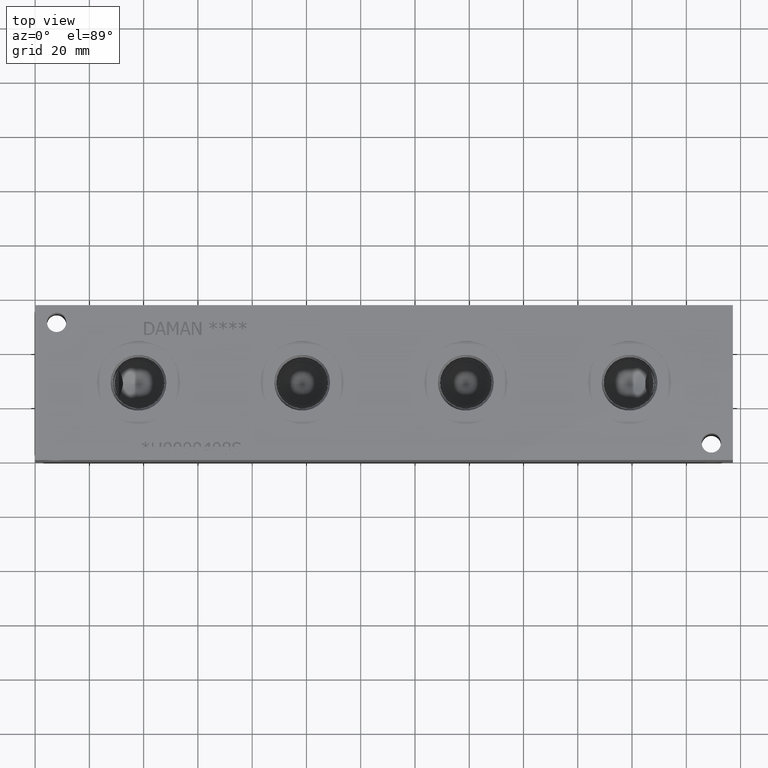
[diagram: clean part render]
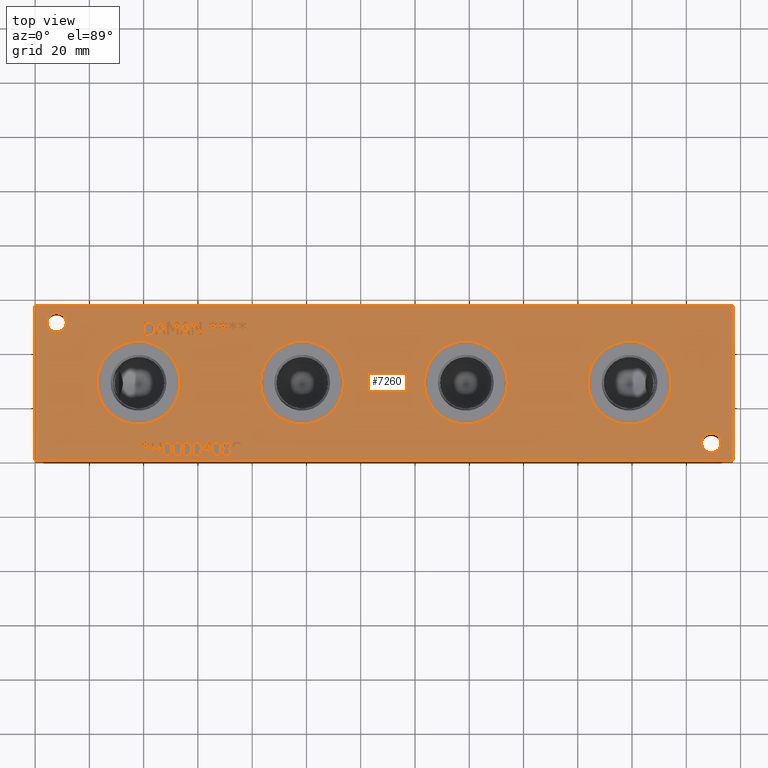
[diagram: same view with one face highlighted and labeled with its STEP entity id]
A machine part, top view. The second image highlights one B-rep face of the part: STEP entity #7260.
In plain terms, the highlighted planar face has unit normal (0, 0, 1).
Its self-contained STEP definition (entity closure, byte-faithful):
#80=CIRCLE('',#7562,15.3162);
#81=CIRCLE('',#7563,15.3162);
#82=CIRCLE('',#7564,15.3162);
#83=CIRCLE('',#7565,15.3162);
#84=CIRCLE('',#7566,15.3162);
#85=CIRCLE('',#7567,15.3162);
#86=CIRCLE('',#7568,15.3162);
#87=CIRCLE('',#7569,15.3162);
#88=CIRCLE('',#7570,3.5687);
#89=CIRCLE('',#7571,3.5687);
#90=CIRCLE('',#7572,3.5687);
#91=CIRCLE('',#7573,3.5687);
#209=FACE_BOUND('',#1024,.T.);
#210=FACE_BOUND('',#1025,.T.);
#211=FACE_BOUND('',#1026,.T.);
#212=FACE_BOUND('',#1027,.T.);
#213=FACE_BOUND('',#1028,.T.);
#214=FACE_BOUND('',#1029,.T.);
#215=FACE_BOUND('',#1030,.T.);
#216=FACE_BOUND('',#1031,.T.);
#217=FACE_BOUND('',#1032,.T.);
#218=FACE_BOUND('',#1033,.T.);
#219=FACE_BOUND('',#1034,.T.);
#220=FACE_BOUND('',#1035,.T.);
#221=FACE_BOUND('',#1036,.T.);
#222=FACE_BOUND('',#1037,.T.);
#223=FACE_BOUND('',#1038,.T.);
#224=FACE_BOUND('',#1039,.T.);
#225=FACE_BOUND('',#1040,.T.);
#226=FACE_BOUND('',#1041,.T.);
#227=FACE_BOUND('',#1042,.T.);
#228=FACE_BOUND('',#1043,.T.);
#229=FACE_BOUND('',#1044,.T.);
#230=FACE_BOUND('',#1045,.T.);
#231=FACE_BOUND('',#1046,.T.);
#232=FACE_BOUND('',#1047,.T.);
#233=FACE_BOUND('',#1048,.T.);
#317=PLANE('',#7561);
#633=FACE_OUTER_BOUND('',#1023,.T.);
#1023=EDGE_LOOP('',(#5357,#5358,#5359,#5360));
#1024=EDGE_LOOP('',(#5361,#5362,#5363,#5364,#5365,#5366,#5367,#5368,#5369,
#5370,#5371));
#1025=EDGE_LOOP('',(#5372,#5373,#5374,#5375));
#1026=EDGE_LOOP('',(#5376,#5377,#5378,#5379,#5380,#5381,#5382,#5383,#5384,
#5385,#5386));
#1027=EDGE_LOOP('',(#5387,#5388,#5389,#5390));
#1028=EDGE_LOOP('',(#5391,#5392,#5393,#5394));
#1029=EDGE_LOOP('',(#5395,#5396,#5397,#5398));
#1030=EDGE_LOOP('',(#5399,#5400,#5401,#5402));
#1031=EDGE_LOOP('',(#5403,#5404,#5405,#5406,#5407,#5408,#5409,#5410,#5411,
#5412,#5413,#5414,#5415,#5416,#5417,#5418,#5419,#5420));
#1032=EDGE_LOOP('',(#5421,#5422,#5423,#5424,#5425,#5426,#5427,#5428,#5429,
#5430,#5431,#5432));
#1033=EDGE_LOOP('',(#5433,#5434,#5435,#5436,#5437,#5438,#5439,#5440,#5441,
#5442,#5443,#5444,#5445,#5446,#5447,#5448,#5449,#5450,#5451,#5452));
#1034=EDGE_LOOP('',(#5453,#5454));
#1035=EDGE_LOOP('',(#5455,#5456));
#1036=EDGE_LOOP('',(#5457,#5458));
#1037=EDGE_LOOP('',(#5459,#5460));
#1038=EDGE_LOOP('',(#5461,#5462));
#1039=EDGE_LOOP('',(#5463,#5464));
#1040=EDGE_LOOP('',(#5465,#5466,#5467,#5468,#5469,#5470,#5471,#5472,#5473,
#5474,#5475,#5476,#5477,#5478,#5479,#5480,#5481,#5482));
#1041=EDGE_LOOP('',(#5483,#5484,#5485,#5486,#5487,#5488,#5489,#5490,#5491,
#5492,#5493,#5494,#5495,#5496,#5497,#5498,#5499,#5500));
#1042=EDGE_LOOP('',(#5501,#5502,#5503,#5504,#5505,#5506,#5507,#5508,#5509,
#5510));
#1043=EDGE_LOOP('',(#5511,#5512,#5513,#5514,#5515,#5516,#5517,#5518));
#1044=EDGE_LOOP('',(#5519,#5520,#5521,#5522,#5523,#5524,#5525));
#1045=EDGE_LOOP('',(#5526,#5527,#5528,#5529,#5530,#5531,#5532,#5533));
#1046=EDGE_LOOP('',(#5534,#5535,#5536,#5537,#5538,#5539,#5540,#5541,#5542,
#5543,#5544,#5545,#5546));
#1047=EDGE_LOOP('',(#5547,#5548,#5549,#5550,#5551,#5552,#5553,#5554,#5555,
#5556,#5557,#5558,#5559,#5560,#5561,#5562,#5563,#5564));
#1048=EDGE_LOOP('',(#5565,#5566,#5567,#5568,#5569,#5570,#5571,#5572,#5573,
#5574,#5575,#5576,#5577,#5578,#5579,#5580,#5581,#5582));
#1311=LINE('',#9653,#2003);
#1318=LINE('',#9735,#2010);
#1344=LINE('',#10044,#2036);
#1348=LINE('',#10052,#2040);
#1351=LINE('',#10058,#2043);
#1354=LINE('',#10064,#2046);
#1357=LINE('',#10070,#2049);
#1360=LINE('',#10076,#2052);
#1363=LINE('',#10082,#2055);
#1366=LINE('',#10088,#2058);
#1369=LINE('',#10094,#2061);
#1372=LINE('',#10100,#2064);
#1375=LINE('',#10105,#2067);
#1425=LINE('',#11027,#2117);
#1429=LINE('',#11035,#2121);
#1432=LINE('',#11041,#2124);
#1435=LINE('',#11047,#2127);
#1438=LINE('',#11053,#2130);
#1441=LINE('',#11059,#2133);
#1444=LINE('',#11065,#2136);
#1447=LINE('',#11071,#2139);
#1450=LINE('',#11077,#2142);
#1453=LINE('',#11083,#2145);
#1456=LINE('',#11089,#2148);
#1459=LINE('',#11095,#2151);
#1462=LINE('',#11101,#2154);
#1465=LINE('',#11107,#2157);
#1468=LINE('',#11113,#2160);
#1471=LINE('',#11119,#2163);
#1474=LINE('',#11125,#2166);
#1477=LINE('',#11130,#2169);
#1479=LINE('',#11136,#2171);
#1483=LINE('',#11144,#2175);
#1486=LINE('',#11150,#2178);
#1489=LINE('',#11156,#2181);
#1492=LINE('',#11162,#2184);
#1495=LINE('',#11168,#2187);
#1498=LINE('',#11174,#2190);
#1501=LINE('',#11180,#2193);
#1504=LINE('',#11186,#2196);
#1507=LINE('',#11192,#2199);
#1510=LINE('',#11198,#2202);
#1513=LINE('',#11203,#2205);
#1523=LINE('',#11344,#2215);
#1526=LINE('',#11350,#2218);
#1537=LINE('',#11508,#2229);
#1540=LINE('',#11514,#2232);
#1543=LINE('',#11538,#2235);
#1544=LINE('',#11540,#2236);
#1545=LINE('',#11542,#2237);
#1546=LINE('',#11543,#2238);
#1547=LINE('',#11570,#2239);
#1548=LINE('',#11572,#2240);
#1549=LINE('',#11574,#2241);
#1550=LINE('',#11576,#2242);
#1551=LINE('',#11578,#2243);
#1552=LINE('',#11580,#2244);
#1553=LINE('',#11582,#2245);
#1554=LINE('',#11584,#2246);
#1555=LINE('',#11586,#2247);
#1556=LINE('',#11588,#2248);
#1557=LINE('',#11590,#2249);
#1558=LINE('',#11592,#2250);
#1559=LINE('',#11594,#2251);
#1560=LINE('',#11596,#2252);
#1561=LINE('',#11598,#2253);
#1562=LINE('',#11600,#2254);
#1563=LINE('',#11602,#2255);
#1564=LINE('',#11603,#2256);
#1565=LINE('',#11606,#2257);
#1566=LINE('',#11608,#2258);
#1567=LINE('',#11610,#2259);
#1568=LINE('',#11612,#2260);
#1569=LINE('',#11614,#2261);
#1570=LINE('',#11616,#2262);
#1571=LINE('',#11618,#2263);
#1572=LINE('',#11620,#2264);
#1573=LINE('',#11622,#2265);
#1574=LINE('',#11624,#2266);
#1575=LINE('',#11626,#2267);
#1576=LINE('',#11628,#2268);
#1577=LINE('',#11630,#2269);
#1578=LINE('',#11632,#2270);
#1579=LINE('',#11634,#2271);
#1580=LINE('',#11636,#2272);
#1581=LINE('',#11638,#2273);
#1582=LINE('',#11639,#2274);
#1583=LINE('',#11642,#2275);
#1584=LINE('',#11644,#2276);
#1585=LINE('',#11646,#2277);
#1586=LINE('',#11648,#2278);
#1587=LINE('',#11650,#2279);
#1588=LINE('',#11652,#2280);
#1589=LINE('',#11654,#2281);
#1590=LINE('',#11656,#2282);
#1591=LINE('',#11658,#2283);
#1592=LINE('',#11659,#2284);
#1593=LINE('',#11662,#2285);
#1594=LINE('',#11664,#2286);
#1595=LINE('',#11666,#2287);
#1596=LINE('',#11668,#2288);
#1597=LINE('',#11670,#2289);
#1598=LINE('',#11672,#2290);
#1599=LINE('',#11674,#2291);
#1600=LINE('',#11675,#2292);
#1601=LINE('',#11693,#2293);
#1602=LINE('',#11695,#2294);
#1603=LINE('',#11697,#2295);
#1604=LINE('',#11704,#2296);
#1605=LINE('',#11706,#2297);
#1606=LINE('',#11708,#2298);
#1607=LINE('',#11710,#2299);
#1608=LINE('',#11712,#2300);
#1609=LINE('',#11714,#2301);
#1610=LINE('',#11716,#2302);
#1611=LINE('',#11717,#2303);
#1612=LINE('',#11720,#2304);
#1613=LINE('',#11722,#2305);
#1614=LINE('',#11724,#2306);
#1615=LINE('',#11726,#2307);
#1616=LINE('',#11728,#2308);
#1617=LINE('',#11730,#2309);
#1618=LINE('',#11732,#2310);
#1619=LINE('',#11734,#2311);
#1620=LINE('',#11736,#2312);
#1621=LINE('',#11738,#2313);
#1622=LINE('',#11740,#2314);
#1623=LINE('',#11742,#2315);
#1624=LINE('',#11743,#2316);
#1625=LINE('',#11746,#2317);
#1626=LINE('',#11748,#2318);
#1627=LINE('',#11750,#2319);
#1628=LINE('',#11752,#2320);
#1629=LINE('',#11754,#2321);
#1630=LINE('',#11756,#2322);
#1631=LINE('',#11758,#2323);
#1632=LINE('',#11760,#2324);
#1633=LINE('',#11762,#2325);
#1634=LINE('',#11764,#2326);
#1635=LINE('',#11766,#2327);
#1636=LINE('',#11768,#2328);
#1637=LINE('',#11770,#2329);
#1638=LINE('',#11772,#2330);
#1639=LINE('',#11774,#2331);
#1640=LINE('',#11776,#2332);
#1641=LINE('',#11778,#2333);
#1642=LINE('',#11779,#2334);
#1643=LINE('',#11782,#2335);
#1644=LINE('',#11784,#2336);
#1645=LINE('',#11786,#2337);
#1646=LINE('',#11788,#2338);
#1647=LINE('',#11790,#2339);
#1648=LINE('',#11792,#2340);
#1649=LINE('',#11794,#2341);
#1650=LINE('',#11796,#2342);
#1651=LINE('',#11798,#2343);
#1652=LINE('',#11800,#2344);
#1653=LINE('',#11802,#2345);
#1654=LINE('',#11804,#2346);
#1655=LINE('',#11806,#2347);
#1656=LINE('',#11808,#2348);
#1657=LINE('',#11810,#2349);
#1658=LINE('',#11812,#2350);
#1659=LINE('',#11814,#2351);
#1660=LINE('',#11815,#2352);
#2003=VECTOR('',#7926,10.);
#2010=VECTOR('',#7935,10.);
#2036=VECTOR('',#7973,10.);
#2040=VECTOR('',#7979,10.);
#2043=VECTOR('',#7984,10.);
#2046=VECTOR('',#7989,10.);
#2049=VECTOR('',#7994,10.);
#2052=VECTOR('',#7999,10.);
#2055=VECTOR('',#8004,10.);
#2058=VECTOR('',#8009,10.);
#2061=VECTOR('',#8014,10.);
#2064=VECTOR('',#8019,10.);
#2067=VECTOR('',#8024,10.);
#2117=VECTOR('',#8086,10.);
#2121=VECTOR('',#8092,10.);
#2124=VECTOR('',#8097,10.);
#2127=VECTOR('',#8102,10.);
#2130=VECTOR('',#8107,10.);
#2133=VECTOR('',#8112,10.);
#2136=VECTOR('',#8117,10.);
#2139=VECTOR('',#8122,10.);
#2142=VECTOR('',#8127,10.);
#2145=VECTOR('',#8132,10.);
#2148=VECTOR('',#8137,10.);
#2151=VECTOR('',#8142,10.);
#2154=VECTOR('',#8147,10.);
#2157=VECTOR('',#8152,10.);
#2160=VECTOR('',#8157,10.);
#2163=VECTOR('',#8162,10.);
#2166=VECTOR('',#8167,10.);
#2169=VECTOR('',#8172,10.);
#2171=VECTOR('',#8178,10.);
#2175=VECTOR('',#8184,10.);
#2178=VECTOR('',#8189,10.);
#2181=VECTOR('',#8194,10.);
#2184=VECTOR('',#8199,10.);
#2187=VECTOR('',#8204,10.);
#2190=VECTOR('',#8209,10.);
#2193=VECTOR('',#8214,10.);
#2196=VECTOR('',#8219,10.);
#2199=VECTOR('',#8224,10.);
#2202=VECTOR('',#8229,10.);
#2205=VECTOR('',#8234,10.);
#2215=VECTOR('',#8248,10.);
#2218=VECTOR('',#8253,10.);
#2229=VECTOR('',#8266,10.);
#2232=VECTOR('',#8271,10.);
#2235=VECTOR('',#8278,10.);
#2236=VECTOR('',#8279,10.);
#2237=VECTOR('',#8280,10.);
#2238=VECTOR('',#8281,10.);
#2239=VECTOR('',#8306,10.);
#2240=VECTOR('',#8307,10.);
#2241=VECTOR('',#8308,10.);
#2242=VECTOR('',#8309,10.);
#2243=VECTOR('',#8310,10.);
#2244=VECTOR('',#8311,10.);
#2245=VECTOR('',#8312,10.);
#2246=VECTOR('',#8313,10.);
#2247=VECTOR('',#8314,10.);
#2248=VECTOR('',#8315,10.);
#2249=VECTOR('',#8316,10.);
#2250=VECTOR('',#8317,10.);
#2251=VECTOR('',#8318,10.);
#2252=VECTOR('',#8319,10.);
#2253=VECTOR('',#8320,10.);
#2254=VECTOR('',#8321,10.);
#2255=VECTOR('',#8322,10.);
#2256=VECTOR('',#8323,10.);
#2257=VECTOR('',#8324,10.);
#2258=VECTOR('',#8325,10.);
#2259=VECTOR('',#8326,10.);
#2260=VECTOR('',#8327,10.);
#2261=VECTOR('',#8328,10.);
#2262=VECTOR('',#8329,10.);
#2263=VECTOR('',#8330,10.);
#2264=VECTOR('',#8331,10.);
#2265=VECTOR('',#8332,10.);
#2266=VECTOR('',#8333,10.);
#2267=VECTOR('',#8334,10.);
#2268=VECTOR('',#8335,10.);
#2269=VECTOR('',#8336,10.);
#2270=VECTOR('',#8337,10.);
#2271=VECTOR('',#8338,10.);
#2272=VECTOR('',#8339,10.);
#2273=VECTOR('',#8340,10.);
#2274=VECTOR('',#8341,10.);
#2275=VECTOR('',#8342,10.);
#2276=VECTOR('',#8343,10.);
#2277=VECTOR('',#8344,10.);
#2278=VECTOR('',#8345,10.);
#2279=VECTOR('',#8346,10.);
#2280=VECTOR('',#8347,10.);
#2281=VECTOR('',#8348,10.);
#2282=VECTOR('',#8349,10.);
#2283=VECTOR('',#8350,10.);
#2284=VECTOR('',#8351,10.);
#2285=VECTOR('',#8352,10.);
#2286=VECTOR('',#8353,10.);
#2287=VECTOR('',#8354,10.);
#2288=VECTOR('',#8355,10.);
#2289=VECTOR('',#8356,10.);
#2290=VECTOR('',#8357,10.);
#2291=VECTOR('',#8358,10.);
#2292=VECTOR('',#8359,10.);
#2293=VECTOR('',#8360,10.);
#2294=VECTOR('',#8361,10.);
#2295=VECTOR('',#8362,10.);
#2296=VECTOR('',#8363,10.);
#2297=VECTOR('',#8364,10.);
#2298=VECTOR('',#8365,10.);
#2299=VECTOR('',#8366,10.);
#2300=VECTOR('',#8367,10.);
#2301=VECTOR('',#8368,10.);
#2302=VECTOR('',#8369,10.);
#2303=VECTOR('',#8370,10.);
#2304=VECTOR('',#8371,10.);
#2305=VECTOR('',#8372,10.);
#2306=VECTOR('',#8373,10.);
#2307=VECTOR('',#8374,10.);
#2308=VECTOR('',#8375,10.);
#2309=VECTOR('',#8376,10.);
#2310=VECTOR('',#8377,10.);
#2311=VECTOR('',#8378,10.);
#2312=VECTOR('',#8379,10.);
#2313=VECTOR('',#8380,10.);
#2314=VECTOR('',#8381,10.);
#2315=VECTOR('',#8382,10.);
#2316=VECTOR('',#8383,10.);
#2317=VECTOR('',#8384,10.);
#2318=VECTOR('',#8385,10.);
#2319=VECTOR('',#8386,10.);
#2320=VECTOR('',#8387,10.);
#2321=VECTOR('',#8388,10.);
#2322=VECTOR('',#8389,10.);
#2323=VECTOR('',#8390,10.);
#2324=VECTOR('',#8391,10.);
#2325=VECTOR('',#8392,10.);
#2326=VECTOR('',#8393,10.);
#2327=VECTOR('',#8394,10.);
#2328=VECTOR('',#8395,10.);
#2329=VECTOR('',#8396,10.);
#2330=VECTOR('',#8397,10.);
#2331=VECTOR('',#8398,10.);
#2332=VECTOR('',#8399,10.);
#2333=VECTOR('',#8400,10.);
#2334=VECTOR('',#8401,10.);
#2335=VECTOR('',#8402,10.);
#2336=VECTOR('',#8403,10.);
#2337=VECTOR('',#8404,10.);
#2338=VECTOR('',#8405,10.);
#2339=VECTOR('',#8406,10.);
#2340=VECTOR('',#8407,10.);
#2341=VECTOR('',#8408,10.);
#2342=VECTOR('',#8409,10.);
#2343=VECTOR('',#8410,10.);
#2344=VECTOR('',#8411,10.);
#2345=VECTOR('',#8412,10.);
#2346=VECTOR('',#8413,10.);
#2347=VECTOR('',#8414,10.);
#2348=VECTOR('',#8415,10.);
#2349=VECTOR('',#8416,10.);
#2350=VECTOR('',#8417,10.);
#2351=VECTOR('',#8418,10.);
#2352=VECTOR('',#8419,10.);
#2702=B_SPLINE_CURVE_WITH_KNOTS('',2,(#9620,#9621,#9622,#9623),
 .UNSPECIFIED.,.F.,.F.,(3,1,3),(0.,1.,2.),.UNSPECIFIED.);
#2704=B_SPLINE_CURVE_WITH_KNOTS('',2,(#9641,#9642,#9643,#9644),
 .UNSPECIFIED.,.F.,.F.,(3,1,3),(0.,1.,2.),.UNSPECIFIED.);
#2706=B_SPLINE_CURVE_WITH_KNOTS('',2,(#9666,#9667,#9668,#9669),
 .UNSPECIFIED.,.F.,.F.,(3,1,3),(0.,1.,2.),.UNSPECIFIED.);
#2708=B_SPLINE_CURVE_WITH_KNOTS('',2,(#9685,#9686,#9687,#9688),
 .UNSPECIFIED.,.F.,.F.,(3,1,3),(0.,1.,2.),.UNSPECIFIED.);
#2710=B_SPLINE_CURVE_WITH_KNOTS('',2,(#9704,#9705,#9706,#9707),
 .UNSPECIFIED.,.F.,.F.,(3,1,3),(0.,1.,2.),.UNSPECIFIED.);
#2712=B_SPLINE_CURVE_WITH_KNOTS('',2,(#9723,#9724,#9725,#9726),
 .UNSPECIFIED.,.F.,.F.,(3,1,3),(0.,1.,2.),.UNSPECIFIED.);
#2714=B_SPLINE_CURVE_WITH_KNOTS('',2,(#9748,#9749,#9750,#9751),
 .UNSPECIFIED.,.F.,.F.,(3,1,3),(0.,1.,2.),.UNSPECIFIED.);
#2716=B_SPLINE_CURVE_WITH_KNOTS('',2,(#9767,#9768,#9769,#9770),
 .UNSPECIFIED.,.F.,.F.,(3,1,3),(0.,1.,2.),.UNSPECIFIED.);
#2718=B_SPLINE_CURVE_WITH_KNOTS('',2,(#9785,#9786,#9787,#9788),
 .UNSPECIFIED.,.F.,.F.,(3,1,3),(0.,1.,2.),.UNSPECIFIED.);
#2736=B_SPLINE_CURVE_WITH_KNOTS('',2,(#9956,#9957,#9958,#9959),
 .UNSPECIFIED.,.F.,.F.,(3,1,3),(0.,1.,2.),.UNSPECIFIED.);
#2738=B_SPLINE_CURVE_WITH_KNOTS('',2,(#9977,#9978,#9979,#9980),
 .UNSPECIFIED.,.F.,.F.,(3,1,3),(0.,1.,2.),.UNSPECIFIED.);
#2740=B_SPLINE_CURVE_WITH_KNOTS('',2,(#9996,#9997,#9998,#9999),
 .UNSPECIFIED.,.F.,.F.,(3,1,3),(0.,1.,2.),.UNSPECIFIED.);
#2742=B_SPLINE_CURVE_WITH_KNOTS('',2,(#10014,#10015,#10016,#10017),
 .UNSPECIFIED.,.F.,.F.,(3,1,3),(0.,1.,2.),.UNSPECIFIED.);
#2760=B_SPLINE_CURVE_WITH_KNOTS('',2,(#10270,#10271,#10272,#10273),
 .UNSPECIFIED.,.F.,.F.,(3,1,3),(0.,1.,2.),.UNSPECIFIED.);
#2762=B_SPLINE_CURVE_WITH_KNOTS('',2,(#10291,#10292,#10293,#10294),
 .UNSPECIFIED.,.F.,.F.,(3,1,3),(0.,1.,2.),.UNSPECIFIED.);
#2764=B_SPLINE_CURVE_WITH_KNOTS('',2,(#10310,#10311,#10312,#10313),
 .UNSPECIFIED.,.F.,.F.,(3,1,3),(0.,1.,2.),.UNSPECIFIED.);
#2766=B_SPLINE_CURVE_WITH_KNOTS('',2,(#10328,#10329,#10330,#10331),
 .UNSPECIFIED.,.F.,.F.,(3,1,3),(0.,1.,2.),.UNSPECIFIED.);
#2784=B_SPLINE_CURVE_WITH_KNOTS('',2,(#10499,#10500,#10501,#10502),
 .UNSPECIFIED.,.F.,.F.,(3,1,3),(0.,1.,2.),.UNSPECIFIED.);
#2786=B_SPLINE_CURVE_WITH_KNOTS('',2,(#10520,#10521,#10522,#10523),
 .UNSPECIFIED.,.F.,.F.,(3,1,3),(0.,1.,2.),.UNSPECIFIED.);
#2788=B_SPLINE_CURVE_WITH_KNOTS('',2,(#10539,#10540,#10541,#10542),
 .UNSPECIFIED.,.F.,.F.,(3,1,3),(0.,1.,2.),.UNSPECIFIED.);
#2790=B_SPLINE_CURVE_WITH_KNOTS('',2,(#10557,#10558,#10559,#10560),
 .UNSPECIFIED.,.F.,.F.,(3,1,3),(0.,1.,2.),.UNSPECIFIED.);
#2808=B_SPLINE_CURVE_WITH_KNOTS('',2,(#10728,#10729,#10730,#10731),
 .UNSPECIFIED.,.F.,.F.,(3,1,3),(0.,1.,2.),.UNSPECIFIED.);
#2810=B_SPLINE_CURVE_WITH_KNOTS('',2,(#10749,#10750,#10751,#10752),
 .UNSPECIFIED.,.F.,.F.,(3,1,3),(0.,1.,2.),.UNSPECIFIED.);
#2812=B_SPLINE_CURVE_WITH_KNOTS('',2,(#10768,#10769,#10770,#10771),
 .UNSPECIFIED.,.F.,.F.,(3,1,3),(0.,1.,2.),.UNSPECIFIED.);
#2814=B_SPLINE_CURVE_WITH_KNOTS('',2,(#10786,#10787,#10788,#10789),
 .UNSPECIFIED.,.F.,.F.,(3,1,3),(0.,1.,2.),.UNSPECIFIED.);
#2832=B_SPLINE_CURVE_WITH_KNOTS('',2,(#10957,#10958,#10959,#10960),
 .UNSPECIFIED.,.F.,.F.,(3,1,3),(0.,1.,2.),.UNSPECIFIED.);
#2834=B_SPLINE_CURVE_WITH_KNOTS('',2,(#10978,#10979,#10980,#10981),
 .UNSPECIFIED.,.F.,.F.,(3,1,3),(0.,1.,2.),.UNSPECIFIED.);
#2836=B_SPLINE_CURVE_WITH_KNOTS('',2,(#10997,#10998,#10999,#11000),
 .UNSPECIFIED.,.F.,.F.,(3,1,3),(0.,1.,2.),.UNSPECIFIED.);
#2838=B_SPLINE_CURVE_WITH_KNOTS('',2,(#11015,#11016,#11017,#11018),
 .UNSPECIFIED.,.F.,.F.,(3,1,3),(0.,1.,2.),.UNSPECIFIED.);
#2840=B_SPLINE_CURVE_WITH_KNOTS('',2,(#11216,#11217,#11218,#11219),
 .UNSPECIFIED.,.F.,.F.,(3,1,3),(0.,1.,2.),.UNSPECIFIED.);
#2842=B_SPLINE_CURVE_WITH_KNOTS('',2,(#11237,#11238,#11239,#11240),
 .UNSPECIFIED.,.F.,.F.,(3,1,3),(0.,1.,2.),.UNSPECIFIED.);
#2844=B_SPLINE_CURVE_WITH_KNOTS('',2,(#11256,#11257,#11258,#11259),
 .UNSPECIFIED.,.F.,.F.,(3,1,3),(0.,1.,2.),.UNSPECIFIED.);
#2846=B_SPLINE_CURVE_WITH_KNOTS('',2,(#11275,#11276,#11277,#11278),
 .UNSPECIFIED.,.F.,.F.,(3,1,3),(0.,1.,2.),.UNSPECIFIED.);
#2848=B_SPLINE_CURVE_WITH_KNOTS('',2,(#11294,#11295,#11296,#11297),
 .UNSPECIFIED.,.F.,.F.,(3,1,3),(0.,1.,2.),.UNSPECIFIED.);
#2850=B_SPLINE_CURVE_WITH_KNOTS('',2,(#11313,#11314,#11315,#11316),
 .UNSPECIFIED.,.F.,.F.,(3,1,3),(0.,1.,2.),.UNSPECIFIED.);
#2852=B_SPLINE_CURVE_WITH_KNOTS('',2,(#11332,#11333,#11334,#11335),
 .UNSPECIFIED.,.F.,.F.,(3,1,3),(0.,1.,2.),.UNSPECIFIED.);
#2854=B_SPLINE_CURVE_WITH_KNOTS('',2,(#11363,#11364,#11365,#11366),
 .UNSPECIFIED.,.F.,.F.,(3,1,3),(0.,1.,2.),.UNSPECIFIED.);
#2856=B_SPLINE_CURVE_WITH_KNOTS('',2,(#11382,#11383,#11384,#11385),
 .UNSPECIFIED.,.F.,.F.,(3,1,3),(0.,1.,2.),.UNSPECIFIED.);
#2858=B_SPLINE_CURVE_WITH_KNOTS('',2,(#11401,#11402,#11403,#11404),
 .UNSPECIFIED.,.F.,.F.,(3,1,3),(0.,1.,2.),.UNSPECIFIED.);
#2860=B_SPLINE_CURVE_WITH_KNOTS('',2,(#11420,#11421,#11422,#11423),
 .UNSPECIFIED.,.F.,.F.,(3,1,3),(0.,1.,2.),.UNSPECIFIED.);
#2862=B_SPLINE_CURVE_WITH_KNOTS('',2,(#11439,#11440,#11441,#11442),
 .UNSPECIFIED.,.F.,.F.,(3,1,3),(0.,1.,2.),.UNSPECIFIED.);
#2864=B_SPLINE_CURVE_WITH_KNOTS('',2,(#11458,#11459,#11460,#11461),
 .UNSPECIFIED.,.F.,.F.,(3,1,3),(0.,1.,2.),.UNSPECIFIED.);
#2866=B_SPLINE_CURVE_WITH_KNOTS('',2,(#11477,#11478,#11479,#11480),
 .UNSPECIFIED.,.F.,.F.,(3,1,3),(0.,1.,2.),.UNSPECIFIED.);
#2868=B_SPLINE_CURVE_WITH_KNOTS('',2,(#11496,#11497,#11498,#11499),
 .UNSPECIFIED.,.F.,.F.,(3,1,3),(0.,1.,2.),.UNSPECIFIED.);
#2870=B_SPLINE_CURVE_WITH_KNOTS('',2,(#11526,#11527,#11528,#11529),
 .UNSPECIFIED.,.F.,.F.,(3,1,3),(0.,1.,2.),.UNSPECIFIED.);
#2872=B_SPLINE_CURVE_WITH_KNOTS('',2,(#11678,#11679,#11680,#11681),
 .UNSPECIFIED.,.F.,.F.,(3,1,3),(0.,1.,2.),.UNSPECIFIED.);
#2873=B_SPLINE_CURVE_WITH_KNOTS('',2,(#11683,#11684,#11685,#11686),
 .UNSPECIFIED.,.F.,.F.,(3,1,3),(0.,1.,2.),.UNSPECIFIED.);
#2874=B_SPLINE_CURVE_WITH_KNOTS('',2,(#11688,#11689,#11690,#11691),
 .UNSPECIFIED.,.F.,.F.,(3,1,3),(0.,1.,2.),.UNSPECIFIED.);
#2875=B_SPLINE_CURVE_WITH_KNOTS('',2,(#11698,#11699,#11700,#11701),
 .UNSPECIFIED.,.F.,.F.,(3,1,3),(0.,1.,2.),.UNSPECIFIED.);
#2918=VERTEX_POINT('',#9618);
#2919=VERTEX_POINT('',#9619);
#2922=VERTEX_POINT('',#9640);
#2924=VERTEX_POINT('',#9652);
#2926=VERTEX_POINT('',#9665);
#2928=VERTEX_POINT('',#9684);
#2930=VERTEX_POINT('',#9703);
#2932=VERTEX_POINT('',#9722);
#2934=VERTEX_POINT('',#9734);
#2936=VERTEX_POINT('',#9747);
#2938=VERTEX_POINT('',#9766);
#2956=VERTEX_POINT('',#9954);
#2957=VERTEX_POINT('',#9955);
#2960=VERTEX_POINT('',#9976);
#2962=VERTEX_POINT('',#9995);
#2970=VERTEX_POINT('',#10042);
#2971=VERTEX_POINT('',#10043);
#2974=VERTEX_POINT('',#10051);
#2976=VERTEX_POINT('',#10057);
#2978=VERTEX_POINT('',#10063);
#2980=VERTEX_POINT('',#10069);
#2982=VERTEX_POINT('',#10075);
#2984=VERTEX_POINT('',#10081);
#2986=VERTEX_POINT('',#10087);
#2988=VERTEX_POINT('',#10093);
#2990=VERTEX_POINT('',#10099);
#3008=VERTEX_POINT('',#10268);
#3009=VERTEX_POINT('',#10269);
#3012=VERTEX_POINT('',#10290);
#3014=VERTEX_POINT('',#10309);
#3032=VERTEX_POINT('',#10497);
#3033=VERTEX_POINT('',#10498);
#3036=VERTEX_POINT('',#10519);
#3038=VERTEX_POINT('',#10538);
#3056=VERTEX_POINT('',#10726);
#3057=VERTEX_POINT('',#10727);
#3060=VERTEX_POINT('',#10748);
#3062=VERTEX_POINT('',#10767);
#3080=VERTEX_POINT('',#10955);
#3081=VERTEX_POINT('',#10956);
#3084=VERTEX_POINT('',#10977);
#3086=VERTEX_POINT('',#10996);
#3088=VERTEX_POINT('',#11025);
#3089=VERTEX_POINT('',#11026);
#3092=VERTEX_POINT('',#11034);
#3094=VERTEX_POINT('',#11040);
#3096=VERTEX_POINT('',#11046);
#3098=VERTEX_POINT('',#11052);
#3100=VERTEX_POINT('',#11058);
#3102=VERTEX_POINT('',#11064);
#3104=VERTEX_POINT('',#11070);
#3106=VERTEX_POINT('',#11076);
#3108=VERTEX_POINT('',#11082);
#3110=VERTEX_POINT('',#11088);
#3112=VERTEX_POINT('',#11094);
#3114=VERTEX_POINT('',#11100);
#3116=VERTEX_POINT('',#11106);
#3118=VERTEX_POINT('',#11112);
#3120=VERTEX_POINT('',#11118);
#3122=VERTEX_POINT('',#11124);
#3124=VERTEX_POINT('',#11134);
#3125=VERTEX_POINT('',#11135);
#3128=VERTEX_POINT('',#11143);
#3130=VERTEX_POINT('',#11149);
#3132=VERTEX_POINT('',#11155);
#3134=VERTEX_POINT('',#11161);
#3136=VERTEX_POINT('',#11167);
#3138=VERTEX_POINT('',#11173);
#3140=VERTEX_POINT('',#11179);
#3142=VERTEX_POINT('',#11185);
#3144=VERTEX_POINT('',#11191);
#3146=VERTEX_POINT('',#11197);
#3148=VERTEX_POINT('',#11214);
#3149=VERTEX_POINT('',#11215);
#3152=VERTEX_POINT('',#11236);
#3154=VERTEX_POINT('',#11255);
#3156=VERTEX_POINT('',#11274);
#3158=VERTEX_POINT('',#11293);
#3160=VERTEX_POINT('',#11312);
#3162=VERTEX_POINT('',#11331);
#3164=VERTEX_POINT('',#11343);
#3166=VERTEX_POINT('',#11349);
#3168=VERTEX_POINT('',#11362);
#3170=VERTEX_POINT('',#11381);
#3172=VERTEX_POINT('',#11400);
#3174=VERTEX_POINT('',#11419);
#3176=VERTEX_POINT('',#11438);
#3178=VERTEX_POINT('',#11457);
#3180=VERTEX_POINT('',#11476);
#3182=VERTEX_POINT('',#11495);
#3184=VERTEX_POINT('',#11507);
#3186=VERTEX_POINT('',#11513);
#3188=VERTEX_POINT('',#11536);
#3189=VERTEX_POINT('',#11537);
#3190=VERTEX_POINT('',#11539);
#3191=VERTEX_POINT('',#11541);
#3192=VERTEX_POINT('',#11544);
#3193=VERTEX_POINT('',#11545);
#3194=VERTEX_POINT('',#11548);
#3195=VERTEX_POINT('',#11549);
#3196=VERTEX_POINT('',#11552);
#3197=VERTEX_POINT('',#11553);
#3198=VERTEX_POINT('',#11556);
#3199=VERTEX_POINT('',#11557);
#3200=VERTEX_POINT('',#11560);
#3201=VERTEX_POINT('',#11561);
#3202=VERTEX_POINT('',#11564);
#3203=VERTEX_POINT('',#11565);
#3204=VERTEX_POINT('',#11568);
#3205=VERTEX_POINT('',#11569);
#3206=VERTEX_POINT('',#11571);
#3207=VERTEX_POINT('',#11573);
#3208=VERTEX_POINT('',#11575);
#3209=VERTEX_POINT('',#11577);
#3210=VERTEX_POINT('',#11579);
#3211=VERTEX_POINT('',#11581);
#3212=VERTEX_POINT('',#11583);
#3213=VERTEX_POINT('',#11585);
#3214=VERTEX_POINT('',#11587);
#3215=VERTEX_POINT('',#11589);
#3216=VERTEX_POINT('',#11591);
#3217=VERTEX_POINT('',#11593);
#3218=VERTEX_POINT('',#11595);
#3219=VERTEX_POINT('',#11597);
#3220=VERTEX_POINT('',#11599);
#3221=VERTEX_POINT('',#11601);
#3222=VERTEX_POINT('',#11604);
#3223=VERTEX_POINT('',#11605);
#3224=VERTEX_POINT('',#11607);
#3225=VERTEX_POINT('',#11609);
#3226=VERTEX_POINT('',#11611);
#3227=VERTEX_POINT('',#11613);
#3228=VERTEX_POINT('',#11615);
#3229=VERTEX_POINT('',#11617);
#3230=VERTEX_POINT('',#11619);
#3231=VERTEX_POINT('',#11621);
#3232=VERTEX_POINT('',#11623);
#3233=VERTEX_POINT('',#11625);
#3234=VERTEX_POINT('',#11627);
#3235=VERTEX_POINT('',#11629);
#3236=VERTEX_POINT('',#11631);
#3237=VERTEX_POINT('',#11633);
#3238=VERTEX_POINT('',#11635);
#3239=VERTEX_POINT('',#11637);
#3240=VERTEX_POINT('',#11640);
#3241=VERTEX_POINT('',#11641);
#3242=VERTEX_POINT('',#11643);
#3243=VERTEX_POINT('',#11645);
#3244=VERTEX_POINT('',#11647);
#3245=VERTEX_POINT('',#11649);
#3246=VERTEX_POINT('',#11651);
#3247=VERTEX_POINT('',#11653);
#3248=VERTEX_POINT('',#11655);
#3249=VERTEX_POINT('',#11657);
#3250=VERTEX_POINT('',#11660);
#3251=VERTEX_POINT('',#11661);
#3252=VERTEX_POINT('',#11663);
#3253=VERTEX_POINT('',#11665);
#3254=VERTEX_POINT('',#11667);
#3255=VERTEX_POINT('',#11669);
#3256=VERTEX_POINT('',#11671);
#3257=VERTEX_POINT('',#11673);
#3258=VERTEX_POINT('',#11676);
#3259=VERTEX_POINT('',#11677);
#3260=VERTEX_POINT('',#11682);
#3261=VERTEX_POINT('',#11687);
#3262=VERTEX_POINT('',#11692);
#3263=VERTEX_POINT('',#11694);
#3264=VERTEX_POINT('',#11696);
#3265=VERTEX_POINT('',#11702);
#3266=VERTEX_POINT('',#11703);
#3267=VERTEX_POINT('',#11705);
#3268=VERTEX_POINT('',#11707);
#3269=VERTEX_POINT('',#11709);
#3270=VERTEX_POINT('',#11711);
#3271=VERTEX_POINT('',#11713);
#3272=VERTEX_POINT('',#11715);
#3273=VERTEX_POINT('',#11718);
#3274=VERTEX_POINT('',#11719);
#3275=VERTEX_POINT('',#11721);
#3276=VERTEX_POINT('',#11723);
#3277=VERTEX_POINT('',#11725);
#3278=VERTEX_POINT('',#11727);
#3279=VERTEX_POINT('',#11729);
#3280=VERTEX_POINT('',#11731);
#3281=VERTEX_POINT('',#11733);
#3282=VERTEX_POINT('',#11735);
#3283=VERTEX_POINT('',#11737);
#3284=VERTEX_POINT('',#11739);
#3285=VERTEX_POINT('',#11741);
#3286=VERTEX_POINT('',#11744);
#3287=VERTEX_POINT('',#11745);
#3288=VERTEX_POINT('',#11747);
#3289=VERTEX_POINT('',#11749);
#3290=VERTEX_POINT('',#11751);
#3291=VERTEX_POINT('',#11753);
#3292=VERTEX_POINT('',#11755);
#3293=VERTEX_POINT('',#11757);
#3294=VERTEX_POINT('',#11759);
#3295=VERTEX_POINT('',#11761);
#3296=VERTEX_POINT('',#11763);
#3297=VERTEX_POINT('',#11765);
#3298=VERTEX_POINT('',#11767);
#3299=VERTEX_POINT('',#11769);
#3300=VERTEX_POINT('',#11771);
#3301=VERTEX_POINT('',#11773);
#3302=VERTEX_POINT('',#11775);
#3303=VERTEX_POINT('',#11777);
#3304=VERTEX_POINT('',#11780);
#3305=VERTEX_POINT('',#11781);
#3306=VERTEX_POINT('',#11783);
#3307=VERTEX_POINT('',#11785);
#3308=VERTEX_POINT('',#11787);
#3309=VERTEX_POINT('',#11789);
#3310=VERTEX_POINT('',#11791);
#3311=VERTEX_POINT('',#11793);
#3312=VERTEX_POINT('',#11795);
#3313=VERTEX_POINT('',#11797);
#3314=VERTEX_POINT('',#11799);
#3315=VERTEX_POINT('',#11801);
#3316=VERTEX_POINT('',#11803);
#3317=VERTEX_POINT('',#11805);
#3318=VERTEX_POINT('',#11807);
#3319=VERTEX_POINT('',#11809);
#3320=VERTEX_POINT('',#11811);
#3321=VERTEX_POINT('',#11813);
#3625=EDGE_CURVE('',#2918,#2919,#2702,.T.);
#3629=EDGE_CURVE('',#2922,#2918,#2704,.T.);
#3632=EDGE_CURVE('',#2924,#2922,#1311,.T.);
#3635=EDGE_CURVE('',#2926,#2924,#2706,.T.);
#3638=EDGE_CURVE('',#2928,#2926,#2708,.T.);
#3641=EDGE_CURVE('',#2930,#2928,#2710,.T.);
#3644=EDGE_CURVE('',#2932,#2930,#2712,.T.);
#3647=EDGE_CURVE('',#2934,#2932,#1318,.T.);
#3650=EDGE_CURVE('',#2936,#2934,#2714,.T.);
#3653=EDGE_CURVE('',#2938,#2936,#2716,.T.);
#3656=EDGE_CURVE('',#2919,#2938,#2718,.T.);
#3682=EDGE_CURVE('',#2956,#2957,#2736,.T.);
#3686=EDGE_CURVE('',#2960,#2956,#2738,.T.);
#3689=EDGE_CURVE('',#2962,#2960,#2740,.T.);
#3692=EDGE_CURVE('',#2957,#2962,#2742,.T.);
#3703=EDGE_CURVE('',#2970,#2971,#1344,.T.);
#3707=EDGE_CURVE('',#2974,#2970,#1348,.T.);
#3710=EDGE_CURVE('',#2976,#2974,#1351,.T.);
#3713=EDGE_CURVE('',#2978,#2976,#1354,.T.);
#3716=EDGE_CURVE('',#2980,#2978,#1357,.T.);
#3719=EDGE_CURVE('',#2982,#2980,#1360,.T.);
#3722=EDGE_CURVE('',#2984,#2982,#1363,.T.);
#3725=EDGE_CURVE('',#2986,#2984,#1366,.T.);
#3728=EDGE_CURVE('',#2988,#2986,#1369,.T.);
#3731=EDGE_CURVE('',#2990,#2988,#1372,.T.);
#3734=EDGE_CURVE('',#2971,#2990,#1375,.T.);
#3760=EDGE_CURVE('',#3008,#3009,#2760,.T.);
#3764=EDGE_CURVE('',#3012,#3008,#2762,.T.);
#3767=EDGE_CURVE('',#3014,#3012,#2764,.T.);
#3770=EDGE_CURVE('',#3009,#3014,#2766,.T.);
#3796=EDGE_CURVE('',#3032,#3033,#2784,.T.);
#3800=EDGE_CURVE('',#3036,#3032,#2786,.T.);
#3803=EDGE_CURVE('',#3038,#3036,#2788,.T.);
#3806=EDGE_CURVE('',#3033,#3038,#2790,.T.);
#3832=EDGE_CURVE('',#3056,#3057,#2808,.T.);
#3836=EDGE_CURVE('',#3060,#3056,#2810,.T.);
#3839=EDGE_CURVE('',#3062,#3060,#2812,.T.);
#3842=EDGE_CURVE('',#3057,#3062,#2814,.T.);
#3868=EDGE_CURVE('',#3080,#3081,#2832,.T.);
#3872=EDGE_CURVE('',#3084,#3080,#2834,.T.);
#3875=EDGE_CURVE('',#3086,#3084,#2836,.T.);
#3878=EDGE_CURVE('',#3081,#3086,#2838,.T.);
#3880=EDGE_CURVE('',#3088,#3089,#1425,.T.);
#3884=EDGE_CURVE('',#3092,#3088,#1429,.T.);
#3887=EDGE_CURVE('',#3094,#3092,#1432,.T.);
#3890=EDGE_CURVE('',#3096,#3094,#1435,.T.);
#3893=EDGE_CURVE('',#3098,#3096,#1438,.T.);
#3896=EDGE_CURVE('',#3100,#3098,#1441,.T.);
#3899=EDGE_CURVE('',#3102,#3100,#1444,.T.);
#3902=EDGE_CURVE('',#3104,#3102,#1447,.T.);
#3905=EDGE_CURVE('',#3106,#3104,#1450,.T.);
#3908=EDGE_CURVE('',#3108,#3106,#1453,.T.);
#3911=EDGE_CURVE('',#3110,#3108,#1456,.T.);
#3914=EDGE_CURVE('',#3112,#3110,#1459,.T.);
#3917=EDGE_CURVE('',#3114,#3112,#1462,.T.);
#3920=EDGE_CURVE('',#3116,#3114,#1465,.T.);
#3923=EDGE_CURVE('',#3118,#3116,#1468,.T.);
#3926=EDGE_CURVE('',#3120,#3118,#1471,.T.);
#3929=EDGE_CURVE('',#3122,#3120,#1474,.T.);
#3932=EDGE_CURVE('',#3089,#3122,#1477,.T.);
#3934=EDGE_CURVE('',#3124,#3125,#1479,.T.);
#3938=EDGE_CURVE('',#3128,#3124,#1483,.T.);
#3941=EDGE_CURVE('',#3130,#3128,#1486,.T.);
#3944=EDGE_CURVE('',#3132,#3130,#1489,.T.);
#3947=EDGE_CURVE('',#3134,#3132,#1492,.T.);
#3950=EDGE_CURVE('',#3136,#3134,#1495,.T.);
#3953=EDGE_CURVE('',#3138,#3136,#1498,.T.);
#3956=EDGE_CURVE('',#3140,#3138,#1501,.T.);
#3959=EDGE_CURVE('',#3142,#3140,#1504,.T.);
#3962=EDGE_CURVE('',#3144,#3142,#1507,.T.);
#3965=EDGE_CURVE('',#3146,#3144,#1510,.T.);
#3968=EDGE_CURVE('',#3125,#3146,#1513,.T.);
#3970=EDGE_CURVE('',#3148,#3149,#2840,.T.);
#3974=EDGE_CURVE('',#3152,#3148,#2842,.T.);
#3977=EDGE_CURVE('',#3154,#3152,#2844,.T.);
#3980=EDGE_CURVE('',#3156,#3154,#2846,.T.);
#3983=EDGE_CURVE('',#3158,#3156,#2848,.T.);
#3986=EDGE_CURVE('',#3160,#3158,#2850,.T.);
#3989=EDGE_CURVE('',#3162,#3160,#2852,.T.);
#3992=EDGE_CURVE('',#3164,#3162,#1523,.T.);
#3995=EDGE_CURVE('',#3166,#3164,#1526,.T.);
#3998=EDGE_CURVE('',#3168,#3166,#2854,.T.);
#4001=EDGE_CURVE('',#3170,#3168,#2856,.T.);
#4004=EDGE_CURVE('',#3172,#3170,#2858,.T.);
#4007=EDGE_CURVE('',#3174,#3172,#2860,.T.);
#4010=EDGE_CURVE('',#3176,#3174,#2862,.T.);
#4013=EDGE_CURVE('',#3178,#3176,#2864,.T.);
#4016=EDGE_CURVE('',#3180,#3178,#2866,.T.);
#4019=EDGE_CURVE('',#3182,#3180,#2868,.T.);
#4022=EDGE_CURVE('',#3184,#3182,#1537,.T.);
#4025=EDGE_CURVE('',#3186,#3184,#1540,.T.);
#4028=EDGE_CURVE('',#3149,#3186,#2870,.T.);
#4030=EDGE_CURVE('',#3188,#3189,#1543,.T.);
#4031=EDGE_CURVE('',#3189,#3190,#1544,.T.);
#4032=EDGE_CURVE('',#3190,#3191,#1545,.T.);
#4033=EDGE_CURVE('',#3191,#3188,#1546,.T.);
#4034=EDGE_CURVE('',#3192,#3193,#80,.T.);
#4035=EDGE_CURVE('',#3193,#3192,#81,.T.);
#4036=EDGE_CURVE('',#3194,#3195,#82,.T.);
#4037=EDGE_CURVE('',#3195,#3194,#83,.T.);
#4038=EDGE_CURVE('',#3196,#3197,#84,.T.);
#4039=EDGE_CURVE('',#3197,#3196,#85,.T.);
#4040=EDGE_CURVE('',#3198,#3199,#86,.T.);
#4041=EDGE_CURVE('',#3199,#3198,#87,.T.);
#4042=EDGE_CURVE('',#3200,#3201,#88,.T.);
#4043=EDGE_CURVE('',#3201,#3200,#89,.T.);
#4044=EDGE_CURVE('',#3202,#3203,#90,.T.);
#4045=EDGE_CURVE('',#3203,#3202,#91,.T.);
#4046=EDGE_CURVE('',#3204,#3205,#1547,.T.);
#4047=EDGE_CURVE('',#3205,#3206,#1548,.T.);
#4048=EDGE_CURVE('',#3206,#3207,#1549,.T.);
#4049=EDGE_CURVE('',#3207,#3208,#1550,.T.);
#4050=EDGE_CURVE('',#3208,#3209,#1551,.T.);
#4051=EDGE_CURVE('',#3209,#3210,#1552,.T.);
#4052=EDGE_CURVE('',#3210,#3211,#1553,.T.);
#4053=EDGE_CURVE('',#3211,#3212,#1554,.T.);
#4054=EDGE_CURVE('',#3212,#3213,#1555,.T.);
#4055=EDGE_CURVE('',#3213,#3214,#1556,.T.);
#4056=EDGE_CURVE('',#3214,#3215,#1557,.T.);
#4057=EDGE_CURVE('',#3215,#3216,#1558,.T.);
#4058=EDGE_CURVE('',#3216,#3217,#1559,.T.);
#4059=EDGE_CURVE('',#3217,#3218,#1560,.T.);
#4060=EDGE_CURVE('',#3218,#3219,#1561,.T.);
#4061=EDGE_CURVE('',#3219,#3220,#1562,.T.);
#4062=EDGE_CURVE('',#3220,#3221,#1563,.T.);
#4063=EDGE_CURVE('',#3221,#3204,#1564,.T.);
#4064=EDGE_CURVE('',#3222,#3223,#1565,.T.);
#4065=EDGE_CURVE('',#3223,#3224,#1566,.T.);
#4066=EDGE_CURVE('',#3224,#3225,#1567,.T.);
#4067=EDGE_CURVE('',#3225,#3226,#1568,.T.);
#4068=EDGE_CURVE('',#3226,#3227,#1569,.T.);
#4069=EDGE_CURVE('',#3227,#3228,#1570,.T.);
#4070=EDGE_CURVE('',#3228,#3229,#1571,.T.);
#4071=EDGE_CURVE('',#3229,#3230,#1572,.T.);
#4072=EDGE_CURVE('',#3230,#3231,#1573,.T.);
#4073=EDGE_CURVE('',#3231,#3232,#1574,.T.);
#4074=EDGE_CURVE('',#3232,#3233,#1575,.T.);
#4075=EDGE_CURVE('',#3233,#3234,#1576,.T.);
#4076=EDGE_CURVE('',#3234,#3235,#1577,.T.);
#4077=EDGE_CURVE('',#3235,#3236,#1578,.T.);
#4078=EDGE_CURVE('',#3236,#3237,#1579,.T.);
#4079=EDGE_CURVE('',#3237,#3238,#1580,.T.);
#4080=EDGE_CURVE('',#3238,#3239,#1581,.T.);
#4081=EDGE_CURVE('',#3239,#3222,#1582,.T.);
#4082=EDGE_CURVE('',#3240,#3241,#1583,.T.);
#4083=EDGE_CURVE('',#3241,#3242,#1584,.T.);
#4084=EDGE_CURVE('',#3242,#3243,#1585,.T.);
#4085=EDGE_CURVE('',#3243,#3244,#1586,.T.);
#4086=EDGE_CURVE('',#3244,#3245,#1587,.T.);
#4087=EDGE_CURVE('',#3245,#3246,#1588,.T.);
#4088=EDGE_CURVE('',#3246,#3247,#1589,.T.);
#4089=EDGE_CURVE('',#3247,#3248,#1590,.T.);
#4090=EDGE_CURVE('',#3248,#3249,#1591,.T.);
#4091=EDGE_CURVE('',#3249,#3240,#1592,.T.);
#4092=EDGE_CURVE('',#3250,#3251,#1593,.T.);
#4093=EDGE_CURVE('',#3251,#3252,#1594,.T.);
#4094=EDGE_CURVE('',#3252,#3253,#1595,.T.);
#4095=EDGE_CURVE('',#3253,#3254,#1596,.T.);
#4096=EDGE_CURVE('',#3254,#3255,#1597,.T.);
#4097=EDGE_CURVE('',#3255,#3256,#1598,.T.);
#4098=EDGE_CURVE('',#3256,#3257,#1599,.T.);
#4099=EDGE_CURVE('',#3257,#3250,#1600,.T.);
#4100=EDGE_CURVE('',#3258,#3259,#2872,.T.);
#4101=EDGE_CURVE('',#3259,#3260,#2873,.T.);
#4102=EDGE_CURVE('',#3260,#3261,#2874,.T.);
#4103=EDGE_CURVE('',#3261,#3262,#1601,.T.);
#4104=EDGE_CURVE('',#3262,#3263,#1602,.T.);
#4105=EDGE_CURVE('',#3263,#3264,#1603,.T.);
#4106=EDGE_CURVE('',#3264,#3258,#2875,.T.);
#4107=EDGE_CURVE('',#3265,#3266,#1604,.T.);
#4108=EDGE_CURVE('',#3266,#3267,#1605,.T.);
#4109=EDGE_CURVE('',#3267,#3268,#1606,.T.);
#4110=EDGE_CURVE('',#3268,#3269,#1607,.T.);
#4111=EDGE_CURVE('',#3269,#3270,#1608,.T.);
#4112=EDGE_CURVE('',#3270,#3271,#1609,.T.);
#4113=EDGE_CURVE('',#3271,#3272,#1610,.T.);
#4114=EDGE_CURVE('',#3272,#3265,#1611,.T.);
#4115=EDGE_CURVE('',#3273,#3274,#1612,.T.);
#4116=EDGE_CURVE('',#3274,#3275,#1613,.T.);
#4117=EDGE_CURVE('',#3275,#3276,#1614,.T.);
#4118=EDGE_CURVE('',#3276,#3277,#1615,.T.);
#4119=EDGE_CURVE('',#3277,#3278,#1616,.T.);
#4120=EDGE_CURVE('',#3278,#3279,#1617,.T.);
#4121=EDGE_CURVE('',#3279,#3280,#1618,.T.);
#4122=EDGE_CURVE('',#3280,#3281,#1619,.T.);
#4123=EDGE_CURVE('',#3281,#3282,#1620,.T.);
#4124=EDGE_CURVE('',#3282,#3283,#1621,.T.);
#4125=EDGE_CURVE('',#3283,#3284,#1622,.T.);
#4126=EDGE_CURVE('',#3284,#3285,#1623,.T.);
#4127=EDGE_CURVE('',#3285,#3273,#1624,.T.);
#4128=EDGE_CURVE('',#3286,#3287,#1625,.T.);
#4129=EDGE_CURVE('',#3287,#3288,#1626,.T.);
#4130=EDGE_CURVE('',#3288,#3289,#1627,.T.);
#4131=EDGE_CURVE('',#3289,#3290,#1628,.T.);
#4132=EDGE_CURVE('',#3290,#3291,#1629,.T.);
#4133=EDGE_CURVE('',#3291,#3292,#1630,.T.);
#4134=EDGE_CURVE('',#3292,#3293,#1631,.T.);
#4135=EDGE_CURVE('',#3293,#3294,#1632,.T.);
#4136=EDGE_CURVE('',#3294,#3295,#1633,.T.);
#4137=EDGE_CURVE('',#3295,#3296,#1634,.T.);
#4138=EDGE_CURVE('',#3296,#3297,#1635,.T.);
#4139=EDGE_CURVE('',#3297,#3298,#1636,.T.);
#4140=EDGE_CURVE('',#3298,#3299,#1637,.T.);
#4141=EDGE_CURVE('',#3299,#3300,#1638,.T.);
#4142=EDGE_CURVE('',#3300,#3301,#1639,.T.);
#4143=EDGE_CURVE('',#3301,#3302,#1640,.T.);
#4144=EDGE_CURVE('',#3302,#3303,#1641,.T.);
#4145=EDGE_CURVE('',#3303,#3286,#1642,.T.);
#4146=EDGE_CURVE('',#3304,#3305,#1643,.T.);
#4147=EDGE_CURVE('',#3305,#3306,#1644,.T.);
#4148=EDGE_CURVE('',#3306,#3307,#1645,.T.);
#4149=EDGE_CURVE('',#3307,#3308,#1646,.T.);
#4150=EDGE_CURVE('',#3308,#3309,#1647,.T.);
#4151=EDGE_CURVE('',#3309,#3310,#1648,.T.);
#4152=EDGE_CURVE('',#3310,#3311,#1649,.T.);
#4153=EDGE_CURVE('',#3311,#3312,#1650,.T.);
#4154=EDGE_CURVE('',#3312,#3313,#1651,.T.);
#4155=EDGE_CURVE('',#3313,#3314,#1652,.T.);
#4156=EDGE_CURVE('',#3314,#3315,#1653,.T.);
#4157=EDGE_CURVE('',#3315,#3316,#1654,.T.);
#4158=EDGE_CURVE('',#3316,#3317,#1655,.T.);
#4159=EDGE_CURVE('',#3317,#3318,#1656,.T.);
#4160=EDGE_CURVE('',#3318,#3319,#1657,.T.);
#4161=EDGE_CURVE('',#3319,#3320,#1658,.T.);
#4162=EDGE_CURVE('',#3320,#3321,#1659,.T.);
#4163=EDGE_CURVE('',#3321,#3304,#1660,.T.);
#5357=ORIENTED_EDGE('',*,*,#4030,.T.);
#5358=ORIENTED_EDGE('',*,*,#4031,.T.);
#5359=ORIENTED_EDGE('',*,*,#4032,.T.);
#5360=ORIENTED_EDGE('',*,*,#4033,.T.);
#5361=ORIENTED_EDGE('',*,*,#3625,.T.);
#5362=ORIENTED_EDGE('',*,*,#3656,.T.);
#5363=ORIENTED_EDGE('',*,*,#3653,.T.);
#5364=ORIENTED_EDGE('',*,*,#3650,.T.);
#5365=ORIENTED_EDGE('',*,*,#3647,.T.);
#5366=ORIENTED_EDGE('',*,*,#3644,.T.);
#5367=ORIENTED_EDGE('',*,*,#3641,.T.);
#5368=ORIENTED_EDGE('',*,*,#3638,.T.);
#5369=ORIENTED_EDGE('',*,*,#3635,.T.);
#5370=ORIENTED_EDGE('',*,*,#3632,.T.);
#5371=ORIENTED_EDGE('',*,*,#3629,.T.);
#5372=ORIENTED_EDGE('',*,*,#3682,.T.);
#5373=ORIENTED_EDGE('',*,*,#3692,.T.);
#5374=ORIENTED_EDGE('',*,*,#3689,.T.);
#5375=ORIENTED_EDGE('',*,*,#3686,.T.);
#5376=ORIENTED_EDGE('',*,*,#3703,.T.);
#5377=ORIENTED_EDGE('',*,*,#3734,.T.);
#5378=ORIENTED_EDGE('',*,*,#3731,.T.);
#5379=ORIENTED_EDGE('',*,*,#3728,.T.);
#5380=ORIENTED_EDGE('',*,*,#3725,.T.);
#5381=ORIENTED_EDGE('',*,*,#3722,.T.);
#5382=ORIENTED_EDGE('',*,*,#3719,.T.);
#5383=ORIENTED_EDGE('',*,*,#3716,.T.);
#5384=ORIENTED_EDGE('',*,*,#3713,.T.);
#5385=ORIENTED_EDGE('',*,*,#3710,.T.);
#5386=ORIENTED_EDGE('',*,*,#3707,.T.);
#5387=ORIENTED_EDGE('',*,*,#3760,.T.);
#5388=ORIENTED_EDGE('',*,*,#3770,.T.);
#5389=ORIENTED_EDGE('',*,*,#3767,.T.);
#5390=ORIENTED_EDGE('',*,*,#3764,.T.);
#5391=ORIENTED_EDGE('',*,*,#3796,.T.);
#5392=ORIENTED_EDGE('',*,*,#3806,.T.);
#5393=ORIENTED_EDGE('',*,*,#3803,.T.);
#5394=ORIENTED_EDGE('',*,*,#3800,.T.);
#5395=ORIENTED_EDGE('',*,*,#3832,.T.);
#5396=ORIENTED_EDGE('',*,*,#3842,.T.);
#5397=ORIENTED_EDGE('',*,*,#3839,.T.);
#5398=ORIENTED_EDGE('',*,*,#3836,.T.);
#5399=ORIENTED_EDGE('',*,*,#3868,.T.);
#5400=ORIENTED_EDGE('',*,*,#3878,.T.);
#5401=ORIENTED_EDGE('',*,*,#3875,.T.);
#5402=ORIENTED_EDGE('',*,*,#3872,.T.);
#5403=ORIENTED_EDGE('',*,*,#3880,.T.);
#5404=ORIENTED_EDGE('',*,*,#3932,.T.);
#5405=ORIENTED_EDGE('',*,*,#3929,.T.);
#5406=ORIENTED_EDGE('',*,*,#3926,.T.);
#5407=ORIENTED_EDGE('',*,*,#3923,.T.);
#5408=ORIENTED_EDGE('',*,*,#3920,.T.);
#5409=ORIENTED_EDGE('',*,*,#3917,.T.);
#5410=ORIENTED_EDGE('',*,*,#3914,.T.);
#5411=ORIENTED_EDGE('',*,*,#3911,.T.);
#5412=ORIENTED_EDGE('',*,*,#3908,.T.);
#5413=ORIENTED_EDGE('',*,*,#3905,.T.);
#5414=ORIENTED_EDGE('',*,*,#3902,.T.);
#5415=ORIENTED_EDGE('',*,*,#3899,.T.);
#5416=ORIENTED_EDGE('',*,*,#3896,.T.);
#5417=ORIENTED_EDGE('',*,*,#3893,.T.);
#5418=ORIENTED_EDGE('',*,*,#3890,.T.);
#5419=ORIENTED_EDGE('',*,*,#3887,.T.);
#5420=ORIENTED_EDGE('',*,*,#3884,.T.);
#5421=ORIENTED_EDGE('',*,*,#3934,.T.);
#5422=ORIENTED_EDGE('',*,*,#3968,.T.);
#5423=ORIENTED_EDGE('',*,*,#3965,.T.);
#5424=ORIENTED_EDGE('',*,*,#3962,.T.);
#5425=ORIENTED_EDGE('',*,*,#3959,.T.);
#5426=ORIENTED_EDGE('',*,*,#3956,.T.);
#5427=ORIENTED_EDGE('',*,*,#3953,.T.);
#5428=ORIENTED_EDGE('',*,*,#3950,.T.);
#5429=ORIENTED_EDGE('',*,*,#3947,.T.);
#5430=ORIENTED_EDGE('',*,*,#3944,.T.);
#5431=ORIENTED_EDGE('',*,*,#3941,.T.);
#5432=ORIENTED_EDGE('',*,*,#3938,.T.);
#5433=ORIENTED_EDGE('',*,*,#3970,.T.);
#5434=ORIENTED_EDGE('',*,*,#4028,.T.);
#5435=ORIENTED_EDGE('',*,*,#4025,.T.);
#5436=ORIENTED_EDGE('',*,*,#4022,.T.);
#5437=ORIENTED_EDGE('',*,*,#4019,.T.);
#5438=ORIENTED_EDGE('',*,*,#4016,.T.);
#5439=ORIENTED_EDGE('',*,*,#4013,.T.);
#5440=ORIENTED_EDGE('',*,*,#4010,.T.);
#5441=ORIENTED_EDGE('',*,*,#4007,.T.);
#5442=ORIENTED_EDGE('',*,*,#4004,.T.);
#5443=ORIENTED_EDGE('',*,*,#4001,.T.);
#5444=ORIENTED_EDGE('',*,*,#3998,.T.);
#5445=ORIENTED_EDGE('',*,*,#3995,.T.);
#5446=ORIENTED_EDGE('',*,*,#3992,.T.);
#5447=ORIENTED_EDGE('',*,*,#3989,.T.);
#5448=ORIENTED_EDGE('',*,*,#3986,.T.);
#5449=ORIENTED_EDGE('',*,*,#3983,.T.);
#5450=ORIENTED_EDGE('',*,*,#3980,.T.);
#5451=ORIENTED_EDGE('',*,*,#3977,.T.);
#5452=ORIENTED_EDGE('',*,*,#3974,.T.);
#5453=ORIENTED_EDGE('',*,*,#4034,.T.);
#5454=ORIENTED_EDGE('',*,*,#4035,.T.);
#5455=ORIENTED_EDGE('',*,*,#4036,.T.);
#5456=ORIENTED_EDGE('',*,*,#4037,.T.);
#5457=ORIENTED_EDGE('',*,*,#4038,.T.);
#5458=ORIENTED_EDGE('',*,*,#4039,.T.);
#5459=ORIENTED_EDGE('',*,*,#4040,.T.);
#5460=ORIENTED_EDGE('',*,*,#4041,.T.);
#5461=ORIENTED_EDGE('',*,*,#4042,.T.);
#5462=ORIENTED_EDGE('',*,*,#4043,.T.);
#5463=ORIENTED_EDGE('',*,*,#4044,.T.);
#5464=ORIENTED_EDGE('',*,*,#4045,.T.);
#5465=ORIENTED_EDGE('',*,*,#4046,.T.);
#5466=ORIENTED_EDGE('',*,*,#4047,.T.);
#5467=ORIENTED_EDGE('',*,*,#4048,.T.);
#5468=ORIENTED_EDGE('',*,*,#4049,.T.);
#5469=ORIENTED_EDGE('',*,*,#4050,.T.);
#5470=ORIENTED_EDGE('',*,*,#4051,.T.);
#5471=ORIENTED_EDGE('',*,*,#4052,.T.);
#5472=ORIENTED_EDGE('',*,*,#4053,.T.);
#5473=ORIENTED_EDGE('',*,*,#4054,.T.);
#5474=ORIENTED_EDGE('',*,*,#4055,.T.);
#5475=ORIENTED_EDGE('',*,*,#4056,.T.);
#5476=ORIENTED_EDGE('',*,*,#4057,.T.);
#5477=ORIENTED_EDGE('',*,*,#4058,.T.);
#5478=ORIENTED_EDGE('',*,*,#4059,.T.);
#5479=ORIENTED_EDGE('',*,*,#4060,.T.);
#5480=ORIENTED_EDGE('',*,*,#4061,.T.);
#5481=ORIENTED_EDGE('',*,*,#4062,.T.);
#5482=ORIENTED_EDGE('',*,*,#4063,.T.);
#5483=ORIENTED_EDGE('',*,*,#4064,.T.);
#5484=ORIENTED_EDGE('',*,*,#4065,.T.);
#5485=ORIENTED_EDGE('',*,*,#4066,.T.);
#5486=ORIENTED_EDGE('',*,*,#4067,.T.);
#5487=ORIENTED_EDGE('',*,*,#4068,.T.);
#5488=ORIENTED_EDGE('',*,*,#4069,.T.);
#5489=ORIENTED_EDGE('',*,*,#4070,.T.);
#5490=ORIENTED_EDGE('',*,*,#4071,.T.);
#5491=ORIENTED_EDGE('',*,*,#4072,.T.);
#5492=ORIENTED_EDGE('',*,*,#4073,.T.);
#5493=ORIENTED_EDGE('',*,*,#4074,.T.);
#5494=ORIENTED_EDGE('',*,*,#4075,.T.);
#5495=ORIENTED_EDGE('',*,*,#4076,.T.);
#5496=ORIENTED_EDGE('',*,*,#4077,.T.);
#5497=ORIENTED_EDGE('',*,*,#4078,.T.);
#5498=ORIENTED_EDGE('',*,*,#4079,.T.);
#5499=ORIENTED_EDGE('',*,*,#4080,.T.);
#5500=ORIENTED_EDGE('',*,*,#4081,.T.);
#5501=ORIENTED_EDGE('',*,*,#4082,.T.);
#5502=ORIENTED_EDGE('',*,*,#4083,.T.);
#5503=ORIENTED_EDGE('',*,*,#4084,.T.);
#5504=ORIENTED_EDGE('',*,*,#4085,.T.);
#5505=ORIENTED_EDGE('',*,*,#4086,.T.);
#5506=ORIENTED_EDGE('',*,*,#4087,.T.);
#5507=ORIENTED_EDGE('',*,*,#4088,.T.);
#5508=ORIENTED_EDGE('',*,*,#4089,.T.);
#5509=ORIENTED_EDGE('',*,*,#4090,.T.);
#5510=ORIENTED_EDGE('',*,*,#4091,.T.);
#5511=ORIENTED_EDGE('',*,*,#4092,.T.);
#5512=ORIENTED_EDGE('',*,*,#4093,.T.);
#5513=ORIENTED_EDGE('',*,*,#4094,.T.);
#5514=ORIENTED_EDGE('',*,*,#4095,.T.);
#5515=ORIENTED_EDGE('',*,*,#4096,.T.);
#5516=ORIENTED_EDGE('',*,*,#4097,.T.);
#5517=ORIENTED_EDGE('',*,*,#4098,.T.);
#5518=ORIENTED_EDGE('',*,*,#4099,.T.);
#5519=ORIENTED_EDGE('',*,*,#4100,.T.);
#5520=ORIENTED_EDGE('',*,*,#4101,.T.);
#5521=ORIENTED_EDGE('',*,*,#4102,.T.);
#5522=ORIENTED_EDGE('',*,*,#4103,.T.);
#5523=ORIENTED_EDGE('',*,*,#4104,.T.);
#5524=ORIENTED_EDGE('',*,*,#4105,.T.);
#5525=ORIENTED_EDGE('',*,*,#4106,.T.);
#5526=ORIENTED_EDGE('',*,*,#4107,.T.);
#5527=ORIENTED_EDGE('',*,*,#4108,.T.);
#5528=ORIENTED_EDGE('',*,*,#4109,.T.);
#5529=ORIENTED_EDGE('',*,*,#4110,.T.);
#5530=ORIENTED_EDGE('',*,*,#4111,.T.);
#5531=ORIENTED_EDGE('',*,*,#4112,.T.);
#5532=ORIENTED_EDGE('',*,*,#4113,.T.);
#5533=ORIENTED_EDGE('',*,*,#4114,.T.);
#5534=ORIENTED_EDGE('',*,*,#4115,.T.);
#5535=ORIENTED_EDGE('',*,*,#4116,.T.);
#5536=ORIENTED_EDGE('',*,*,#4117,.T.);
#5537=ORIENTED_EDGE('',*,*,#4118,.T.);
#5538=ORIENTED_EDGE('',*,*,#4119,.T.);
#5539=ORIENTED_EDGE('',*,*,#4120,.T.);
#5540=ORIENTED_EDGE('',*,*,#4121,.T.);
#5541=ORIENTED_EDGE('',*,*,#4122,.T.);
#5542=ORIENTED_EDGE('',*,*,#4123,.T.);
#5543=ORIENTED_EDGE('',*,*,#4124,.T.);
#5544=ORIENTED_EDGE('',*,*,#4125,.T.);
#5545=ORIENTED_EDGE('',*,*,#4126,.T.);
#5546=ORIENTED_EDGE('',*,*,#4127,.T.);
#5547=ORIENTED_EDGE('',*,*,#4128,.T.);
#5548=ORIENTED_EDGE('',*,*,#4129,.T.);
#5549=ORIENTED_EDGE('',*,*,#4130,.T.);
#5550=ORIENTED_EDGE('',*,*,#4131,.T.);
#5551=ORIENTED_EDGE('',*,*,#4132,.T.);
#5552=ORIENTED_EDGE('',*,*,#4133,.T.);
#5553=ORIENTED_EDGE('',*,*,#4134,.T.);
#5554=ORIENTED_EDGE('',*,*,#4135,.T.);
#5555=ORIENTED_EDGE('',*,*,#4136,.T.);
#5556=ORIENTED_EDGE('',*,*,#4137,.T.);
#5557=ORIENTED_EDGE('',*,*,#4138,.T.);
#5558=ORIENTED_EDGE('',*,*,#4139,.T.);
#5559=ORIENTED_EDGE('',*,*,#4140,.T.);
#5560=ORIENTED_EDGE('',*,*,#4141,.T.);
#5561=ORIENTED_EDGE('',*,*,#4142,.T.);
#5562=ORIENTED_EDGE('',*,*,#4143,.T.);
#5563=ORIENTED_EDGE('',*,*,#4144,.T.);
#5564=ORIENTED_EDGE('',*,*,#4145,.T.);
#5565=ORIENTED_EDGE('',*,*,#4146,.T.);
#5566=ORIENTED_EDGE('',*,*,#4147,.T.);
#5567=ORIENTED_EDGE('',*,*,#4148,.T.);
#5568=ORIENTED_EDGE('',*,*,#4149,.T.);
#5569=ORIENTED_EDGE('',*,*,#4150,.T.);
#5570=ORIENTED_EDGE('',*,*,#4151,.T.);
#5571=ORIENTED_EDGE('',*,*,#4152,.T.);
#5572=ORIENTED_EDGE('',*,*,#4153,.T.);
#5573=ORIENTED_EDGE('',*,*,#4154,.T.);
#5574=ORIENTED_EDGE('',*,*,#4155,.T.);
#5575=ORIENTED_EDGE('',*,*,#4156,.T.);
#5576=ORIENTED_EDGE('',*,*,#4157,.T.);
#5577=ORIENTED_EDGE('',*,*,#4158,.T.);
#5578=ORIENTED_EDGE('',*,*,#4159,.T.);
#5579=ORIENTED_EDGE('',*,*,#4160,.T.);
#5580=ORIENTED_EDGE('',*,*,#4161,.T.);
#5581=ORIENTED_EDGE('',*,*,#4162,.T.);
#5582=ORIENTED_EDGE('',*,*,#4163,.T.);
#7260=ADVANCED_FACE('',(#633,#209,#210,#211,#212,#213,#214,#215,#216,#217,
#218,#219,#220,#221,#222,#223,#224,#225,#226,#227,#228,#229,#230,#231,#232,
#233),#317,.T.);
#7561=AXIS2_PLACEMENT_3D('',#11535,#8276,#8277);
#7562=AXIS2_PLACEMENT_3D('',#11546,#8282,#8283);
#7563=AXIS2_PLACEMENT_3D('',#11547,#8284,#8285);
#7564=AXIS2_PLACEMENT_3D('',#11550,#8286,#8287);
#7565=AXIS2_PLACEMENT_3D('',#11551,#8288,#8289);
#7566=AXIS2_PLACEMENT_3D('',#11554,#8290,#8291);
#7567=AXIS2_PLACEMENT_3D('',#11555,#8292,#8293);
#7568=AXIS2_PLACEMENT_3D('',#11558,#8294,#8295);
#7569=AXIS2_PLACEMENT_3D('',#11559,#8296,#8297);
#7570=AXIS2_PLACEMENT_3D('',#11562,#8298,#8299);
#7571=AXIS2_PLACEMENT_3D('',#11563,#8300,#8301);
#7572=AXIS2_PLACEMENT_3D('',#11566,#8302,#8303);
#7573=AXIS2_PLACEMENT_3D('',#11567,#8304,#8305);
#7926=DIRECTION('',(0.,-1.,0.));
#7935=DIRECTION('',(0.,1.,0.));
#7973=DIRECTION('',(0.,-1.,0.));
#7979=DIRECTION('',(1.,0.,0.));
#7984=DIRECTION('',(0.,-1.,0.));
#7989=DIRECTION('',(1.,0.,0.));
#7994=DIRECTION('',(0.655472859888769,0.755218729871842,0.));
#7999=DIRECTION('',(0.,1.,0.));
#8004=DIRECTION('',(-1.,0.,0.));
#8009=DIRECTION('',(0.,1.,0.));
#8014=DIRECTION('',(-1.,0.,0.));
#8019=DIRECTION('',(0.,-1.,0.));
#8024=DIRECTION('',(-1.,0.,0.));
#8086=DIRECTION('',(0.863671970566992,-0.504054289989609,0.));
#8092=DIRECTION('',(-0.864954307083121,-0.5018506218571,0.));
#8097=DIRECTION('',(0.510320389620593,-0.859984360286561,0.));
#8102=DIRECTION('',(0.83393220572654,0.551866900848445,0.));
#8107=DIRECTION('',(-0.0231725839648085,-0.999731479624601,0.));
#8112=DIRECTION('',(1.,0.,0.));
#8117=DIRECTION('',(-0.0198636297743478,0.999802698642181,0.));
#8122=DIRECTION('',(0.830627692073679,-0.556828193575319,0.));
#8127=DIRECTION('',(0.517259170391712,0.855828809193566,0.));
#8132=DIRECTION('',(-0.863671970566991,0.504054289989611,0.));
#8137=DIRECTION('',(0.862387849576917,0.50624815743082,0.));
#8142=DIRECTION('',(-0.517259170391712,0.855828809193566,0.));
#8147=DIRECTION('',(-0.829670163866862,-0.558253902081422,0.));
#8152=DIRECTION('',(0.0165540227281047,0.999862972777529,0.));
#8157=DIRECTION('',(-1.,0.,0.));
#8162=DIRECTION('',(0.0198636297743478,-0.999802698642181,0.));
#8167=DIRECTION('',(-0.832994863913619,0.55328072141864,0.));
#8172=DIRECTION('',(-0.510320389620593,-0.859984360286562,0.));
#8178=DIRECTION('',(0.,-1.,0.));
#8184=DIRECTION('',(1.,0.,0.));
#8189=DIRECTION('',(0.,1.,0.));
#8194=DIRECTION('',(1.,0.,0.));
#8199=DIRECTION('',(0.,-1.,0.));
#8204=DIRECTION('',(1.,0.,0.));
#8209=DIRECTION('',(0.,1.,0.));
#8214=DIRECTION('',(-1.,0.,0.));
#8219=DIRECTION('',(0.,-1.,0.));
#8224=DIRECTION('',(-1.,0.,0.));
#8229=DIRECTION('',(0.,1.,0.));
#8234=DIRECTION('',(-1.,0.,0.));
#8248=DIRECTION('',(-1.,0.,0.));
#8253=DIRECTION('',(0.,-1.,0.));
#8266=DIRECTION('',(1.,0.,0.));
#8271=DIRECTION('',(0.,1.,0.));
#8276=DIRECTION('center_axis',(0.,0.,1.));
#8277=DIRECTION('ref_axis',(1.,0.,0.));
#8278=DIRECTION('',(1.,0.,0.));
#8279=DIRECTION('',(0.,1.,0.));
#8280=DIRECTION('',(-1.,0.,0.));
#8281=DIRECTION('',(0.,-1.,0.));
#8282=DIRECTION('center_axis',(0.,0.,-1.));
#8283=DIRECTION('ref_axis',(1.,0.,0.));
#8284=DIRECTION('center_axis',(0.,0.,-1.));
#8285=DIRECTION('ref_axis',(1.,0.,0.));
#8286=DIRECTION('center_axis',(0.,0.,-1.));
#8287=DIRECTION('ref_axis',(1.,0.,0.));
#8288=DIRECTION('center_axis',(0.,0.,-1.));
#8289=DIRECTION('ref_axis',(1.,0.,0.));
#8290=DIRECTION('center_axis',(0.,0.,-1.));
#8291=DIRECTION('ref_axis',(1.,0.,0.));
#8292=DIRECTION('center_axis',(0.,0.,-1.));
#8293=DIRECTION('ref_axis',(1.,0.,0.));
#8294=DIRECTION('center_axis',(0.,0.,-1.));
#8295=DIRECTION('ref_axis',(1.,0.,0.));
#8296=DIRECTION('center_axis',(0.,0.,-1.));
#8297=DIRECTION('ref_axis',(1.,0.,0.));
#8298=DIRECTION('center_axis',(0.,0.,-1.));
#8299=DIRECTION('ref_axis',(1.,0.,0.));
#8300=DIRECTION('center_axis',(0.,0.,-1.));
#8301=DIRECTION('ref_axis',(1.,0.,0.));
#8302=DIRECTION('center_axis',(0.,0.,-1.));
#8303=DIRECTION('ref_axis',(1.,0.,0.));
#8304=DIRECTION('center_axis',(0.,0.,-1.));
#8305=DIRECTION('ref_axis',(1.,0.,0.));
#8306=DIRECTION('',(0.863671970566991,-0.504054289989612,0.));
#8307=DIRECTION('',(-0.510320389620596,-0.85998436028656,0.));
#8308=DIRECTION('',(-0.832994863913618,0.553280721418642,0.));
#8309=DIRECTION('',(0.0198636297743478,-0.999802698642181,0.));
#8310=DIRECTION('',(-1.,0.,0.));
#8311=DIRECTION('',(0.0165540227281047,0.999862972777529,0.));
#8312=DIRECTION('',(-0.829670163866862,-0.558253902081422,0.));
#8313=DIRECTION('',(-0.517259170391715,0.855828809193565,0.));
#8314=DIRECTION('',(0.862387849576917,0.506248157430821,0.));
#8315=DIRECTION('',(-0.863671970566993,0.504054289989607,0.));
#8316=DIRECTION('',(0.517259170391706,0.85582880919357,0.));
#8317=DIRECTION('',(0.830627692073678,-0.55682819357532,0.));
#8318=DIRECTION('',(-0.0198636297743478,0.999802698642181,0.));
#8319=DIRECTION('',(1.,0.,0.));
#8320=DIRECTION('',(-0.0231725839648085,-0.999731479624601,0.));
#8321=DIRECTION('',(0.833932205726539,0.551866900848447,0.));
#8322=DIRECTION('',(0.510320389620586,-0.859984360286565,0.));
#8323=DIRECTION('',(-0.864954307083122,-0.501850621857098,0.));
#8324=DIRECTION('',(0.863671970566991,-0.504054289989612,0.));
#8325=DIRECTION('',(-0.510320389620596,-0.85998436028656,0.));
#8326=DIRECTION('',(-0.832994863913618,0.553280721418642,0.));
#8327=DIRECTION('',(0.0198636297743478,-0.999802698642181,0.));
#8328=DIRECTION('',(-1.,0.,0.));
#8329=DIRECTION('',(0.0165540227281047,0.999862972777529,0.));
#8330=DIRECTION('',(-0.829670163866862,-0.558253902081422,0.));
#8331=DIRECTION('',(-0.517259170391715,0.855828809193565,0.));
#8332=DIRECTION('',(0.862387849576917,0.506248157430821,0.));
#8333=DIRECTION('',(-0.863671970566993,0.504054289989607,0.));
#8334=DIRECTION('',(0.517259170391706,0.85582880919357,0.));
#8335=DIRECTION('',(0.830627692073678,-0.55682819357532,0.));
#8336=DIRECTION('',(-0.0198636297743478,0.999802698642181,0.));
#8337=DIRECTION('',(1.,0.,0.));
#8338=DIRECTION('',(-0.0231725839648085,-0.999731479624601,0.));
#8339=DIRECTION('',(0.833932205726539,0.551866900848447,0.));
#8340=DIRECTION('',(0.510320389620586,-0.859984360286565,0.));
#8341=DIRECTION('',(-0.864954307083122,-0.501850621857098,0.));
#8342=DIRECTION('',(0.,-1.,0.));
#8343=DIRECTION('',(-1.,0.,0.));
#8344=DIRECTION('',(-0.456554296231787,0.889695551631173,0.));
#8345=DIRECTION('',(0.,-1.,0.));
#8346=DIRECTION('',(-1.,0.,0.));
#8347=DIRECTION('',(0.,1.,0.));
#8348=DIRECTION('',(1.,0.,0.));
#8349=DIRECTION('',(0.453406386913821,-0.891303903450307,0.));
#8350=DIRECTION('',(0.,1.,0.));
#8351=DIRECTION('',(1.,0.,0.));
#8352=DIRECTION('',(-1.,0.,0.));
#8353=DIRECTION('',(0.319451166674567,0.947602739606771,0.));
#8354=DIRECTION('',(1.,0.,0.));
#8355=DIRECTION('',(0.319451166674567,-0.947602739606771,0.));
#8356=DIRECTION('',(-1.,0.,0.));
#8357=DIRECTION('',(-0.308774363938385,0.951135317488761,0.));
#8358=DIRECTION('',(-1.,0.,0.));
#8359=DIRECTION('',(-0.308774363938379,-0.951135317488763,0.));
#8360=DIRECTION('',(-1.,0.,0.));
#8361=DIRECTION('',(0.,1.,0.));
#8362=DIRECTION('',(1.,0.,0.));
#8363=DIRECTION('',(-1.,0.,0.));
#8364=DIRECTION('',(0.319451166674567,0.947602739606771,0.));
#8365=DIRECTION('',(1.,0.,0.));
#8366=DIRECTION('',(0.319451166674567,-0.947602739606771,0.));
#8367=DIRECTION('',(-1.,0.,0.));
#8368=DIRECTION('',(-0.308774363938385,0.951135317488761,0.));
#8369=DIRECTION('',(-1.,0.,0.));
#8370=DIRECTION('',(-0.308774363938379,-0.951135317488763,0.));
#8371=DIRECTION('',(0.,-1.,0.));
#8372=DIRECTION('',(-1.,0.,0.));
#8373=DIRECTION('',(0.,1.,0.));
#8374=DIRECTION('',(-0.406841728378542,-0.913498663408962,0.));
#8375=DIRECTION('',(-1.,0.,0.));
#8376=DIRECTION('',(-0.403671360964849,0.914904056356068,0.));
#8377=DIRECTION('',(0.,-1.,0.));
#8378=DIRECTION('',(-1.,0.,0.));
#8379=DIRECTION('',(0.,1.,0.));
#8380=DIRECTION('',(1.,0.,0.));
#8381=DIRECTION('',(0.409094040958196,-0.91249222772169,0.));
#8382=DIRECTION('',(0.397944692264712,0.917409408006231,0.));
#8383=DIRECTION('',(1.,0.,0.));
#8384=DIRECTION('',(0.863671970566991,-0.504054289989612,0.));
#8385=DIRECTION('',(-0.510320389620612,-0.85998436028655,0.));
#8386=DIRECTION('',(-0.832994863913616,0.553280721418645,0.));
#8387=DIRECTION('',(0.0198636297743478,-0.999802698642181,0.));
#8388=DIRECTION('',(-1.,0.,0.));
#8389=DIRECTION('',(0.0165540227281047,0.999862972777529,0.));
#8390=DIRECTION('',(-0.829670163866862,-0.558253902081422,0.));
#8391=DIRECTION('',(-0.517259170391715,0.855828809193565,0.));
#8392=DIRECTION('',(0.862387849576917,0.506248157430821,0.));
#8393=DIRECTION('',(-0.863671970566993,0.504054289989607,0.));
#8394=DIRECTION('',(0.517259170391706,0.85582880919357,0.));
#8395=DIRECTION('',(0.830627692073678,-0.55682819357532,0.));
#8396=DIRECTION('',(-0.0198636297743478,0.999802698642181,0.));
#8397=DIRECTION('',(1.,0.,0.));
#8398=DIRECTION('',(-0.0231725839648085,-0.999731479624601,0.));
#8399=DIRECTION('',(0.833932205726537,0.55186690084845,0.));
#8400=DIRECTION('',(0.510320389620602,-0.859984360286556,0.));
#8401=DIRECTION('',(-0.864954307083122,-0.501850621857098,0.));
#8402=DIRECTION('',(0.863671970566991,-0.504054289989612,0.));
#8403=DIRECTION('',(-0.510320389620612,-0.85998436028655,0.));
#8404=DIRECTION('',(-0.832994863913616,0.553280721418645,0.));
#8405=DIRECTION('',(0.0198636297743478,-0.999802698642181,0.));
#8406=DIRECTION('',(-1.,0.,0.));
#8407=DIRECTION('',(0.0165540227281047,0.999862972777529,0.));
#8408=DIRECTION('',(-0.829670163866862,-0.558253902081422,0.));
#8409=DIRECTION('',(-0.517259170391715,0.855828809193565,0.));
#8410=DIRECTION('',(0.862387849576917,0.506248157430821,0.));
#8411=DIRECTION('',(-0.863671970566993,0.504054289989607,0.));
#8412=DIRECTION('',(0.517259170391706,0.85582880919357,0.));
#8413=DIRECTION('',(0.830627692073678,-0.55682819357532,0.));
#8414=DIRECTION('',(-0.0198636297743478,0.999802698642181,0.));
#8415=DIRECTION('',(1.,0.,0.));
#8416=DIRECTION('',(-0.0231725839648085,-0.999731479624601,0.));
#8417=DIRECTION('',(0.833932205726537,0.55186690084845,0.));
#8418=DIRECTION('',(0.510320389620602,-0.859984360286556,0.));
#8419=DIRECTION('',(-0.864954307083122,-0.501850621857098,0.));
#9618=CARTESIAN_POINT('',(72.1213756852786,3.04233955553759,57.15));
#9619=CARTESIAN_POINT('',(70.5492103578935,1.58749999885283,57.15));
#9620=CARTESIAN_POINT('Ctrl Pts',(72.1213756852786,3.04233955553758,57.15));
#9621=CARTESIAN_POINT('Ctrl Pts',(72.1213756852786,2.4244238298489,57.15));
#9622=CARTESIAN_POINT('Ctrl Pts',(71.221878109909,1.58749999885283,57.15));
#9623=CARTESIAN_POINT('Ctrl Pts',(70.5492103578935,1.58749999885283,57.15));
#9640=CARTESIAN_POINT('',(71.2648975591658,4.24688413472819,57.15));
#9641=CARTESIAN_POINT('Ctrl Pts',(71.2648975591658,4.24688413472819,57.15));
#9642=CARTESIAN_POINT('Ctrl Pts',(71.6872703336872,4.05134118356088,57.15));
#9643=CARTESIAN_POINT('Ctrl Pts',(72.1213756852786,3.48817748419904,57.15));
#9644=CARTESIAN_POINT('Ctrl Pts',(72.1213756852786,3.04233955553758,57.15));
#9652=CARTESIAN_POINT('',(71.2648975591658,4.26643842984492,57.15));
#9653=CARTESIAN_POINT('',(71.2648975591658,16.4207192149225,57.15));
#9665=CARTESIAN_POINT('',(72.0001390555549,5.40449840563864,57.15));
#9666=CARTESIAN_POINT('Ctrl Pts',(72.0001390555549,5.40449840563864,57.15));
#9667=CARTESIAN_POINT('Ctrl Pts',(72.0001390555549,5.07989710670091,57.15));
#9668=CARTESIAN_POINT('Ctrl Pts',(71.6207857302903,4.44633794491884,57.15));
#9669=CARTESIAN_POINT('Ctrl Pts',(71.2648975591658,4.26643842984492,57.15));
#9684=CARTESIAN_POINT('',(70.5492103578935,6.63250813896932,57.15));
#9685=CARTESIAN_POINT('Ctrl Pts',(70.5492103578935,6.63250813896932,57.15));
#9686=CARTESIAN_POINT('Ctrl Pts',(71.2062346738156,6.63250813896932,57.15));
#9687=CARTESIAN_POINT('Ctrl Pts',(72.0001390555549,5.94419695086041,57.15));
#9688=CARTESIAN_POINT('Ctrl Pts',(72.0001390555549,5.40449840563864,57.15));
#9703=CARTESIAN_POINT('',(69.0943708012087,5.36147895638183,57.15));
#9704=CARTESIAN_POINT('Ctrl Pts',(69.0943708012087,5.36147895638183,57.15));
#9705=CARTESIAN_POINT('Ctrl Pts',(69.0943708012087,5.90508836062694,57.15));
#9706=CARTESIAN_POINT('Ctrl Pts',(69.9156511961114,6.63250813896932,57.15));
#9707=CARTESIAN_POINT('Ctrl Pts',(70.5492103578935,6.63250813896932,57.15));
#9722=CARTESIAN_POINT('',(69.7944145663877,4.29381444300834,57.15));
#9723=CARTESIAN_POINT('Ctrl Pts',(69.7944145663877,4.29381444300834,57.15));
#9724=CARTESIAN_POINT('Ctrl Pts',(69.4385263952632,4.50108997124569,57.15));
#9725=CARTESIAN_POINT('Ctrl Pts',(69.0943708012087,4.9938582081873,57.15));
#9726=CARTESIAN_POINT('Ctrl Pts',(69.0943708012087,5.36147895638183,57.15));
#9734=CARTESIAN_POINT('',(69.7944145663877,4.27426014789161,57.15));
#9735=CARTESIAN_POINT('',(69.7944145663877,16.4246300739458,57.15));
#9747=CARTESIAN_POINT('',(68.9770450305083,3.03060697846755,57.15));
#9748=CARTESIAN_POINT('Ctrl Pts',(68.9770450305083,3.03060697846755,57.15));
#9749=CARTESIAN_POINT('Ctrl Pts',(68.9770450305083,3.42169288080216,57.15));
#9750=CARTESIAN_POINT('Ctrl Pts',(69.3955069460064,4.07871719672431,57.15));
#9751=CARTESIAN_POINT('Ctrl Pts',(69.7944145663877,4.27426014789161,57.15));
#9766=CARTESIAN_POINT('',(69.391596086983,2.00205105532752,57.15));
#9767=CARTESIAN_POINT('Ctrl Pts',(69.391596086983,2.00205105532752,57.15));
#9768=CARTESIAN_POINT('Ctrl Pts',(69.188231417769,2.19759400649482,57.15));
#9769=CARTESIAN_POINT('Ctrl Pts',(68.9770450305083,2.7294708336699,57.15));
#9770=CARTESIAN_POINT('Ctrl Pts',(68.9770450305083,3.03060697846755,57.15));
#9785=CARTESIAN_POINT('Ctrl Pts',(70.5492103578935,1.58749999885283,57.15));
#9786=CARTESIAN_POINT('Ctrl Pts',(70.1894113277456,1.58749999885283,57.15));
#9787=CARTESIAN_POINT('Ctrl Pts',(69.5988716152204,1.80259724513686,57.15));
#9788=CARTESIAN_POINT('Ctrl Pts',(69.391596086983,2.00205105532752,57.15));
#9954=CARTESIAN_POINT('',(66.9316657612983,6.62077556189928,57.15));
#9955=CARTESIAN_POINT('',(68.4725442164967,4.11000406891108,57.15));
#9956=CARTESIAN_POINT('Ctrl Pts',(66.9316657612983,6.62077556189928,57.15));
#9957=CARTESIAN_POINT('Ctrl Pts',(67.7255701430376,6.62077556189928,57.15));
#9958=CARTESIAN_POINT('Ctrl Pts',(68.4725442164967,5.36930067442853,57.15));
#9959=CARTESIAN_POINT('Ctrl Pts',(68.4725442164967,4.11000406891108,57.15));
#9976=CARTESIAN_POINT('',(65.3868764470766,4.10609320988773,57.15));
#9977=CARTESIAN_POINT('Ctrl Pts',(65.3868764470766,4.10609320988773,57.15));
#9978=CARTESIAN_POINT('Ctrl Pts',(65.3868764470766,5.41232012368533,57.15));
#9979=CARTESIAN_POINT('Ctrl Pts',(66.1416722385824,6.62077556189928,57.15));
#9980=CARTESIAN_POINT('Ctrl Pts',(66.9316657612983,6.62077556189928,57.15));
#9995=CARTESIAN_POINT('',(66.9316657612983,1.59532171689952,57.15));
#9996=CARTESIAN_POINT('Ctrl Pts',(66.9316657612983,1.59532171689952,57.15));
#9997=CARTESIAN_POINT('Ctrl Pts',(66.1338505205357,1.59532171689952,57.15));
#9998=CARTESIAN_POINT('Ctrl Pts',(65.3868764470766,2.83506402730024,57.15));
#9999=CARTESIAN_POINT('Ctrl Pts',(65.3868764470766,4.10609320988773,57.15));
#10014=CARTESIAN_POINT('Ctrl Pts',(68.4725442164967,4.11000406891108,57.15));
#10015=CARTESIAN_POINT('Ctrl Pts',(68.4725442164967,2.81159887316016,57.15));
#10016=CARTESIAN_POINT('Ctrl Pts',(67.7177484249909,1.59532171689952,57.15));
#10017=CARTESIAN_POINT('Ctrl Pts',(66.9316657612983,1.59532171689952,57.15));
#10042=CARTESIAN_POINT('',(64.9527710954852,3.87535252751031,57.15));
#10043=CARTESIAN_POINT('',(64.9527710954852,3.35520827740527,57.15));
#10044=CARTESIAN_POINT('',(64.9527710954852,16.2251762637552,57.15));
#10051=CARTESIAN_POINT('',(64.3778748190533,3.87535252751031,57.15));
#10052=CARTESIAN_POINT('',(96.4826874095267,3.87535252751031,57.15));
#10057=CARTESIAN_POINT('',(64.3778748190533,6.52300408631563,57.15));
#10058=CARTESIAN_POINT('',(64.3778748190533,17.5490020431578,57.15));
#10063=CARTESIAN_POINT('',(63.7834242475047,6.52300408631563,57.15));
#10064=CARTESIAN_POINT('',(96.1854621237524,6.52300408631563,57.15));
#10069=CARTESIAN_POINT('',(61.6246300666176,4.0356977474675,57.15));
#10070=CARTESIAN_POINT('',(82.0835388656746,27.6079187550766,57.15));
#10075=CARTESIAN_POINT('',(61.6246300666176,3.35520827740527,57.15));
#10076=CARTESIAN_POINT('',(61.6246300666176,15.9651041387026,57.15));
#10081=CARTESIAN_POINT('',(63.7560482343413,3.35520827740527,57.15));
#10082=CARTESIAN_POINT('',(96.1717741171706,3.35520827740527,57.15));
#10087=CARTESIAN_POINT('',(63.7560482343413,1.69700405150652,57.15));
#10088=CARTESIAN_POINT('',(63.7560482343413,15.1360020257533,57.15));
#10093=CARTESIAN_POINT('',(64.3778748190533,1.69700405150652,57.15));
#10094=CARTESIAN_POINT('',(96.4826874095267,1.69700405150652,57.15));
#10099=CARTESIAN_POINT('',(64.3778748190533,3.35520827740527,57.15));
#10100=CARTESIAN_POINT('',(64.3778748190533,15.9651041387026,57.15));
#10105=CARTESIAN_POINT('',(96.7701355477426,3.35520827740527,57.15));
#10268=CARTESIAN_POINT('',(59.6887548500613,6.62077556189928,57.15));
#10269=CARTESIAN_POINT('',(61.2296333052597,4.11000406891108,57.15));
#10270=CARTESIAN_POINT('Ctrl Pts',(59.6887548500613,6.62077556189928,57.15));
#10271=CARTESIAN_POINT('Ctrl Pts',(60.4826592318005,6.62077556189928,57.15));
#10272=CARTESIAN_POINT('Ctrl Pts',(61.2296333052597,5.36930067442853,57.15));
#10273=CARTESIAN_POINT('Ctrl Pts',(61.2296333052597,4.11000406891108,57.15));
#10290=CARTESIAN_POINT('',(58.1439655358396,4.10609320988773,57.15));
#10291=CARTESIAN_POINT('Ctrl Pts',(58.1439655358396,4.10609320988773,57.15));
#10292=CARTESIAN_POINT('Ctrl Pts',(58.1439655358396,5.41232012368533,57.15));
#10293=CARTESIAN_POINT('Ctrl Pts',(58.8987613273454,6.62077556189928,57.15));
#10294=CARTESIAN_POINT('Ctrl Pts',(59.6887548500613,6.62077556189928,57.15));
#10309=CARTESIAN_POINT('',(59.6887548500613,1.59532171689952,57.15));
#10310=CARTESIAN_POINT('Ctrl Pts',(59.6887548500613,1.59532171689952,57.15));
#10311=CARTESIAN_POINT('Ctrl Pts',(58.8909396092987,1.59532171689952,57.15));
#10312=CARTESIAN_POINT('Ctrl Pts',(58.1439655358396,2.83506402730024,57.15));
#10313=CARTESIAN_POINT('Ctrl Pts',(58.1439655358396,4.10609320988773,57.15));
#10328=CARTESIAN_POINT('Ctrl Pts',(61.2296333052597,4.11000406891108,57.15));
#10329=CARTESIAN_POINT('Ctrl Pts',(61.2296333052597,2.81159887316016,57.15));
#10330=CARTESIAN_POINT('Ctrl Pts',(60.4748375137539,1.59532171689952,57.15));
#10331=CARTESIAN_POINT('Ctrl Pts',(59.6887548500613,1.59532171689952,57.15));
#10497=CARTESIAN_POINT('',(56.0672993944428,6.62077556189928,57.15));
#10498=CARTESIAN_POINT('',(57.6081778496412,4.11000406891108,57.15));
#10499=CARTESIAN_POINT('Ctrl Pts',(56.0672993944428,6.62077556189928,57.15));
#10500=CARTESIAN_POINT('Ctrl Pts',(56.861203776182,6.62077556189928,57.15));
#10501=CARTESIAN_POINT('Ctrl Pts',(57.6081778496412,5.36930067442853,57.15));
#10502=CARTESIAN_POINT('Ctrl Pts',(57.6081778496412,4.11000406891108,57.15));
#10519=CARTESIAN_POINT('',(54.5225100802211,4.10609320988773,57.15));
#10520=CARTESIAN_POINT('Ctrl Pts',(54.5225100802211,4.10609320988773,57.15));
#10521=CARTESIAN_POINT('Ctrl Pts',(54.5225100802211,5.41232012368533,57.15));
#10522=CARTESIAN_POINT('Ctrl Pts',(55.2773058717269,6.62077556189928,57.15));
#10523=CARTESIAN_POINT('Ctrl Pts',(56.0672993944428,6.62077556189928,57.15));
#10538=CARTESIAN_POINT('',(56.0672993944428,1.59532171689952,57.15));
#10539=CARTESIAN_POINT('Ctrl Pts',(56.0672993944428,1.59532171689952,57.15));
#10540=CARTESIAN_POINT('Ctrl Pts',(55.2694841536802,1.59532171689952,57.15));
#10541=CARTESIAN_POINT('Ctrl Pts',(54.5225100802211,2.83506402730024,57.15));
#10542=CARTESIAN_POINT('Ctrl Pts',(54.5225100802211,4.10609320988773,57.15));
#10557=CARTESIAN_POINT('Ctrl Pts',(57.6081778496412,4.11000406891108,57.15));
#10558=CARTESIAN_POINT('Ctrl Pts',(57.6081778496412,2.81159887316016,57.15));
#10559=CARTESIAN_POINT('Ctrl Pts',(56.8533820581354,1.59532171689952,57.15));
#10560=CARTESIAN_POINT('Ctrl Pts',(56.0672993944428,1.59532171689952,57.15));
#10726=CARTESIAN_POINT('',(52.4458439388243,6.62077556189928,57.15));
#10727=CARTESIAN_POINT('',(53.9867223940226,4.11000406891108,57.15));
#10728=CARTESIAN_POINT('Ctrl Pts',(52.4458439388243,6.62077556189928,57.15));
#10729=CARTESIAN_POINT('Ctrl Pts',(53.2397483205635,6.62077556189928,57.15));
#10730=CARTESIAN_POINT('Ctrl Pts',(53.9867223940226,5.36930067442853,57.15));
#10731=CARTESIAN_POINT('Ctrl Pts',(53.9867223940226,4.11000406891108,57.15));
#10748=CARTESIAN_POINT('',(50.9010546246026,4.10609320988773,57.15));
#10749=CARTESIAN_POINT('Ctrl Pts',(50.9010546246026,4.10609320988773,57.15));
#10750=CARTESIAN_POINT('Ctrl Pts',(50.9010546246026,5.41232012368533,57.15));
#10751=CARTESIAN_POINT('Ctrl Pts',(51.6558504161084,6.62077556189928,57.15));
#10752=CARTESIAN_POINT('Ctrl Pts',(52.4458439388243,6.62077556189928,57.15));
#10767=CARTESIAN_POINT('',(52.4458439388243,1.59532171689952,57.15));
#10768=CARTESIAN_POINT('Ctrl Pts',(52.4458439388243,1.59532171689952,57.15));
#10769=CARTESIAN_POINT('Ctrl Pts',(51.6480286980617,1.59532171689952,57.15));
#10770=CARTESIAN_POINT('Ctrl Pts',(50.9010546246026,2.83506402730024,57.15));
#10771=CARTESIAN_POINT('Ctrl Pts',(50.9010546246026,4.10609320988773,57.15));
#10786=CARTESIAN_POINT('Ctrl Pts',(53.9867223940226,4.11000406891108,57.15));
#10787=CARTESIAN_POINT('Ctrl Pts',(53.9867223940226,2.81159887316016,57.15));
#10788=CARTESIAN_POINT('Ctrl Pts',(53.2319266025168,1.59532171689952,57.15));
#10789=CARTESIAN_POINT('Ctrl Pts',(52.4458439388243,1.59532171689952,57.15));
#10955=CARTESIAN_POINT('',(48.8243884832058,6.62077556189928,57.15));
#10956=CARTESIAN_POINT('',(50.3652669384041,4.11000406891108,57.15));
#10957=CARTESIAN_POINT('Ctrl Pts',(48.8243884832058,6.62077556189928,57.15));
#10958=CARTESIAN_POINT('Ctrl Pts',(49.618292864945,6.62077556189928,57.15));
#10959=CARTESIAN_POINT('Ctrl Pts',(50.3652669384041,5.36930067442853,57.15));
#10960=CARTESIAN_POINT('Ctrl Pts',(50.3652669384041,4.11000406891108,57.15));
#10977=CARTESIAN_POINT('',(47.279599168984,4.10609320988773,57.15));
#10978=CARTESIAN_POINT('Ctrl Pts',(47.279599168984,4.10609320988773,57.15));
#10979=CARTESIAN_POINT('Ctrl Pts',(47.279599168984,5.41232012368533,57.15));
#10980=CARTESIAN_POINT('Ctrl Pts',(48.0343949604898,6.62077556189928,57.15));
#10981=CARTESIAN_POINT('Ctrl Pts',(48.8243884832058,6.62077556189928,57.15));
#10996=CARTESIAN_POINT('',(48.8243884832058,1.59532171689952,57.15));
#10997=CARTESIAN_POINT('Ctrl Pts',(48.8243884832058,1.59532171689952,57.15));
#10998=CARTESIAN_POINT('Ctrl Pts',(48.0265732424432,1.59532171689952,57.15));
#10999=CARTESIAN_POINT('Ctrl Pts',(47.279599168984,2.83506402730024,57.15));
#11000=CARTESIAN_POINT('Ctrl Pts',(47.279599168984,4.10609320988773,57.15));
#11015=CARTESIAN_POINT('Ctrl Pts',(50.3652669384041,4.11000406891108,57.15));
#11016=CARTESIAN_POINT('Ctrl Pts',(50.3652669384041,2.81159887316016,57.15));
#11017=CARTESIAN_POINT('Ctrl Pts',(49.6104711468983,1.59532171689952,57.15));
#11018=CARTESIAN_POINT('Ctrl Pts',(48.8243884832058,1.59532171689952,57.15));
#11025=CARTESIAN_POINT('',(41.0261355906536,5.2402423266581,57.15));
#11026=CARTESIAN_POINT('',(42.172017284494,4.57148543366592,57.15));
#11027=CARTESIAN_POINT('',(68.6041797711668,-10.8547936967814,57.15));
#11034=CARTESIAN_POINT('',(42.172017284494,5.90508836062694,57.15));
#11035=CARTESIAN_POINT('',(79.4179674644548,27.5153666220376,57.15));
#11040=CARTESIAN_POINT('',(41.9608308972333,6.26097653175144,57.15));
#11041=CARTESIAN_POINT('',(48.3443378982466,-4.49641489588219,57.15));
#11046=CARTESIAN_POINT('',(40.8970772428832,5.55702190754914,57.15));
#11047=CARTESIAN_POINT('',(76.6855813631876,29.2405908106917,57.15));
#11052=CARTESIAN_POINT('',(40.9244532560466,6.73810133259967,57.15));
#11053=CARTESIAN_POINT('',(41.200930155838,18.6661047236021,57.15));
#11058=CARTESIAN_POINT('',(40.5177239176186,6.73810133259967,57.15));
#11059=CARTESIAN_POINT('',(84.5526119588093,6.73810133259967,57.15));
#11064=CARTESIAN_POINT('',(40.5411890717587,5.55702190754914,57.15));
#11065=CARTESIAN_POINT('',(40.3299938223609,16.1871827939034,57.15));
#11070=CARTESIAN_POINT('',(39.4852571354552,6.26488739077479,57.15));
#11071=CARTESIAN_POINT('',(65.063560869153,-10.88204955663,57.15));
#11076=CARTESIAN_POINT('',(39.2701598891712,5.90899921965029,57.15));
#11077=CARTESIAN_POINT('',(56.2358545531065,33.9795122090707,57.15));
#11082=CARTESIAN_POINT('',(40.4160415830116,5.2402423266581,57.15));
#11083=CARTESIAN_POINT('',(68.2216292532374,-10.9875921156922,57.15));
#11088=CARTESIAN_POINT('',(39.2701598891712,4.56757457464257,57.15));
#11089=CARTESIAN_POINT('',(77.7239926012676,27.1411555523921,57.15));
#11094=CARTESIAN_POINT('',(39.4852571354552,4.21168640351807,57.15));
#11095=CARTESIAN_POINT('',(46.0125833390132,-6.58807149691433,57.15));
#11100=CARTESIAN_POINT('',(40.5372782127353,4.91955188674372,57.15));
#11101=CARTESIAN_POINT('',(76.320283729823,28.9965927737062,57.15));
#11106=CARTESIAN_POINT('',(40.5177239176186,3.73847246169319,57.15));
#11107=CARTESIAN_POINT('',(40.7353350992873,16.8821878344811,57.15));
#11112=CARTESIAN_POINT('',(40.9244532560466,3.73847246169319,57.15));
#11113=CARTESIAN_POINT('',(84.7559766280233,3.7384724616932,57.15));
#11118=CARTESIAN_POINT('',(40.9009881019065,4.91955188674372,57.15));
#11119=CARTESIAN_POINT('',(40.683391885593,15.8718947745237,57.15));
#11124=CARTESIAN_POINT('',(41.9608308972333,4.21559726254142,57.15));
#11125=CARTESIAN_POINT('',(66.4017259192147,-12.0182075491067,57.15));
#11130=CARTESIAN_POINT('',(58.69165728527,32.4101380275664,57.15));
#11134=CARTESIAN_POINT('',(46.5208925184549,6.52300408631563,57.15));
#11135=CARTESIAN_POINT('',(46.5208925184549,1.69700405150652,57.15));
#11136=CARTESIAN_POINT('',(46.5208925184549,17.5490020431578,57.15));
#11143=CARTESIAN_POINT('',(45.8795116386261,6.52300408631563,57.15));
#11144=CARTESIAN_POINT('',(87.2335058193131,6.52300408631563,57.15));
#11149=CARTESIAN_POINT('',(45.8795116386261,4.63014831901611,57.15));
#11150=CARTESIAN_POINT('',(45.8795116386261,16.6025741595081,57.15));
#11155=CARTESIAN_POINT('',(43.6581437133655,4.63014831901611,57.15));
#11156=CARTESIAN_POINT('',(86.1228218566828,4.63014831901611,57.15));
#11161=CARTESIAN_POINT('',(43.6581437133655,6.52300408631563,57.15));
#11162=CARTESIAN_POINT('',(43.6581437133655,17.5490020431578,57.15));
#11167=CARTESIAN_POINT('',(43.0167628335368,6.52300408631563,57.15));
#11168=CARTESIAN_POINT('',(85.8021314167684,6.52300408631563,57.15));
#11173=CARTESIAN_POINT('',(43.0167628335368,1.69700405150652,57.15));
#11174=CARTESIAN_POINT('',(43.0167628335368,15.1360020257533,57.15));
#11179=CARTESIAN_POINT('',(43.6581437133655,1.69700405150652,57.15));
#11180=CARTESIAN_POINT('',(86.1228218566828,1.69700405150652,57.15));
#11185=CARTESIAN_POINT('',(43.6581437133655,4.05916290160758,57.15));
#11186=CARTESIAN_POINT('',(43.6581437133655,16.3170814508038,57.15));
#11191=CARTESIAN_POINT('',(45.8795116386261,4.05916290160758,57.15));
#11192=CARTESIAN_POINT('',(87.2335058193131,4.05916290160758,57.15));
#11197=CARTESIAN_POINT('',(45.8795116386261,1.69700405150652,57.15));
#11198=CARTESIAN_POINT('',(45.8795116386261,15.1360020257533,57.15));
#11203=CARTESIAN_POINT('',(87.5541962592275,1.69700405150652,57.15));
#11214=CARTESIAN_POINT('',(75.4534275731695,2.04898136360767,57.15));
#11215=CARTESIAN_POINT('',(74.1941309676521,1.6109651529929,57.15));
#11216=CARTESIAN_POINT('Ctrl Pts',(75.4534275731695,2.04898136360767,57.15));
#11217=CARTESIAN_POINT('Ctrl Pts',(75.2226868907921,1.83779497634698,57.15));
#11218=CARTESIAN_POINT('Ctrl Pts',(74.6360580372902,1.6109651529929,57.15));
#11219=CARTESIAN_POINT('Ctrl Pts',(74.1941309676521,1.6109651529929,57.15));
#11236=CARTESIAN_POINT('',(75.8914437837843,3.07362642772435,57.15));
#11237=CARTESIAN_POINT('Ctrl Pts',(75.8914437837843,3.07362642772435,57.15));
#11238=CARTESIAN_POINT('Ctrl Pts',(75.8914437837843,2.78813371902009,57.15));
#11239=CARTESIAN_POINT('Ctrl Pts',(75.6607031014069,2.24061345575163,57.15));
#11240=CARTESIAN_POINT('Ctrl Pts',(75.4534275731695,2.04898136360767,57.15));
#11255=CARTESIAN_POINT('',(74.9332833230645,4.289903583985,57.15));
#11256=CARTESIAN_POINT('Ctrl Pts',(74.9332833230645,4.289903583985,57.15));
#11257=CARTESIAN_POINT('Ctrl Pts',(75.4299624190294,4.1373800820745,57.15));
#11258=CARTESIAN_POINT('Ctrl Pts',(75.8914437837843,3.52337521540916,57.15));
#11259=CARTESIAN_POINT('Ctrl Pts',(75.8914437837843,3.07362642772435,57.15));
#11274=CARTESIAN_POINT('',(73.9438359901579,4.54410942050249,57.15));
#11275=CARTESIAN_POINT('Ctrl Pts',(73.9438359901579,4.54410942050249,57.15));
#11276=CARTESIAN_POINT('Ctrl Pts',(74.1472006593719,4.48935739417565,57.15));
#11277=CARTESIAN_POINT('Ctrl Pts',(74.7377403718972,4.34856646933519,57.15));
#11278=CARTESIAN_POINT('Ctrl Pts',(74.9332833230645,4.289903583985,57.15));
#11293=CARTESIAN_POINT('',(73.3141876873992,5.29499435298495,57.15));
#11294=CARTESIAN_POINT('Ctrl Pts',(73.3141876873992,5.29499435298495,57.15));
#11295=CARTESIAN_POINT('Ctrl Pts',(73.3141876873992,4.98994734916395,57.15));
#11296=CARTESIAN_POINT('Ctrl Pts',(73.6387889863369,4.62623745999276,57.15));
#11297=CARTESIAN_POINT('Ctrl Pts',(73.9438359901579,4.54410942050249,57.15));
#11312=CARTESIAN_POINT('',(74.3114567383524,6.0537010035141,57.15));
#11313=CARTESIAN_POINT('Ctrl Pts',(74.3114567383524,6.0537010035141,57.15));
#11314=CARTESIAN_POINT('Ctrl Pts',(73.865618809691,6.0537010035141,57.15));
#11315=CARTESIAN_POINT('Ctrl Pts',(73.3141876873992,5.63523908801606,57.15));
#11316=CARTESIAN_POINT('Ctrl Pts',(73.3141876873992,5.29499435298495,57.15));
#11331=CARTESIAN_POINT('',(75.6567922423835,5.52964589438572,57.15));
#11332=CARTESIAN_POINT('Ctrl Pts',(75.6567922423835,5.52964589438572,57.15));
#11333=CARTESIAN_POINT('Ctrl Pts',(75.4260515600061,5.74083228164641,57.15));
#11334=CARTESIAN_POINT('Ctrl Pts',(74.7064534997104,6.0537010035141,57.15));
#11335=CARTESIAN_POINT('Ctrl Pts',(74.3114567383524,6.0537010035141,57.15));
#11343=CARTESIAN_POINT('',(75.7037225506637,5.52964589438572,57.15));
#11344=CARTESIAN_POINT('',(102.145611275332,5.52964589438572,57.15));
#11349=CARTESIAN_POINT('',(75.7037225506636,6.29617426296156,57.15));
#11350=CARTESIAN_POINT('',(75.7037225506637,17.4355871314808,57.15));
#11362=CARTESIAN_POINT('',(74.2684372890956,6.60904298482925,57.15));
#11363=CARTESIAN_POINT('Ctrl Pts',(74.2684372890956,6.60904298482925,57.15));
#11364=CARTESIAN_POINT('Ctrl Pts',(74.6751666275236,6.60904298482925,57.15));
#11365=CARTESIAN_POINT('Ctrl Pts',(75.3947646878193,6.44869776487206,57.15));
#11366=CARTESIAN_POINT('Ctrl Pts',(75.7037225506637,6.29617426296156,57.15));
#11381=CARTESIAN_POINT('',(72.645430794407,5.22850974958807,57.15));
#11382=CARTESIAN_POINT('Ctrl Pts',(72.645430794407,5.22850974958807,57.15));
#11383=CARTESIAN_POINT('Ctrl Pts',(72.645430794407,5.81513860308998,57.15));
#11384=CARTESIAN_POINT('Ctrl Pts',(73.56057180587,6.60904298482925,57.15));
#11385=CARTESIAN_POINT('Ctrl Pts',(74.2684372890956,6.60904298482925,57.15));
#11400=CARTESIAN_POINT('',(72.9582995162747,4.35638818738188,57.15));
#11401=CARTESIAN_POINT('Ctrl Pts',(72.9582995162747,4.35638818738188,57.15));
#11402=CARTESIAN_POINT('Ctrl Pts',(72.8096868733875,4.51673340733907,57.15));
#11403=CARTESIAN_POINT('Ctrl Pts',(72.645430794407,4.94692789990714,57.15));
#11404=CARTESIAN_POINT('Ctrl Pts',(72.645430794407,5.22850974958807,57.15));
#11419=CARTESIAN_POINT('',(73.7561147570373,3.93010455383715,57.15));
#11420=CARTESIAN_POINT('Ctrl Pts',(73.7561147570373,3.93010455383715,57.15));
#11421=CARTESIAN_POINT('Ctrl Pts',(73.5058197795431,3.99658915723404,57.15));
#11422=CARTESIAN_POINT('Ctrl Pts',(73.1108230181852,4.19604296742469,57.15));
#11423=CARTESIAN_POINT('Ctrl Pts',(72.9582995162747,4.35638818738188,57.15));
#11438=CARTESIAN_POINT('',(74.6282363192435,3.71109644852977,57.15));
#11439=CARTESIAN_POINT('Ctrl Pts',(74.6282363192435,3.71109644852977,57.15));
#11440=CARTESIAN_POINT('Ctrl Pts',(74.4053173549127,3.77367019290331,57.15));
#11441=CARTESIAN_POINT('Ctrl Pts',(74.0337857476948,3.85970909141692,57.15));
#11442=CARTESIAN_POINT('Ctrl Pts',(73.7561147570373,3.93010455383715,57.15));
#11457=CARTESIAN_POINT('',(75.2226868907921,2.97194409311735,57.15));
#11458=CARTESIAN_POINT('Ctrl Pts',(75.2226868907921,2.97194409311735,57.15));
#11459=CARTESIAN_POINT('Ctrl Pts',(75.2226868907921,3.26134766084497,57.15));
#11460=CARTESIAN_POINT('Ctrl Pts',(74.9371941820878,3.62114669099281,57.15));
#11461=CARTESIAN_POINT('Ctrl Pts',(74.6282363192435,3.71109644852977,57.15));
#11476=CARTESIAN_POINT('',(74.1472006593719,2.16630713430805,57.15));
#11477=CARTESIAN_POINT('Ctrl Pts',(74.1472006593719,2.16630713430805,57.15));
#11478=CARTESIAN_POINT('Ctrl Pts',(74.679077486547,2.16630713430805,57.15));
#11479=CARTESIAN_POINT('Ctrl Pts',(75.2226868907921,2.60823420394617,57.15));
#11480=CARTESIAN_POINT('Ctrl Pts',(75.2226868907921,2.97194409311735,57.15));
#11495=CARTESIAN_POINT('',(72.657163371477,2.79204457804343,57.15));
#11496=CARTESIAN_POINT('Ctrl Pts',(72.657163371477,2.79204457804343,57.15));
#11497=CARTESIAN_POINT('Ctrl Pts',(72.9739429523681,2.49481929226913,57.15));
#11498=CARTESIAN_POINT('Ctrl Pts',(73.775669052154,2.16630713430805,57.15));
#11499=CARTESIAN_POINT('Ctrl Pts',(74.1472006593719,2.16630713430805,57.15));
#11507=CARTESIAN_POINT('',(72.6102330631969,2.79204457804343,57.15));
#11508=CARTESIAN_POINT('',(100.598866531598,2.79204457804343,57.15));
#11513=CARTESIAN_POINT('',(72.6102330631969,1.98640761923413,57.15));
#11514=CARTESIAN_POINT('',(72.6102330631969,15.2807038096171,57.15));
#11526=CARTESIAN_POINT('Ctrl Pts',(74.1941309676521,1.6109651529929,57.15));
#11527=CARTESIAN_POINT('Ctrl Pts',(73.6700758585237,1.6109651529929,57.15));
#11528=CARTESIAN_POINT('Ctrl Pts',(72.9348343621346,1.82997325830029,57.15));
#11529=CARTESIAN_POINT('Ctrl Pts',(72.6102330631969,1.98640761923413,57.15));
#11535=CARTESIAN_POINT('Origin',(128.5875,28.575,57.15));
#11536=CARTESIAN_POINT('',(0.,0.,57.15));
#11537=CARTESIAN_POINT('',(257.175,0.,57.15));
#11538=CARTESIAN_POINT('',(0.,0.,57.15));
#11539=CARTESIAN_POINT('',(257.175,57.15,57.15));
#11540=CARTESIAN_POINT('',(257.175,0.,57.15));
#11541=CARTESIAN_POINT('',(0.,57.15,57.15));
#11542=CARTESIAN_POINT('',(257.175,57.15,57.15));
#11543=CARTESIAN_POINT('',(0.,57.15,57.15));
#11544=CARTESIAN_POINT('',(53.4162,28.575,57.15));
#11545=CARTESIAN_POINT('',(22.7838,28.575,57.15));
#11546=CARTESIAN_POINT('Origin',(38.1,28.575,57.15));
#11547=CARTESIAN_POINT('Origin',(38.1,28.575,57.15));
#11548=CARTESIAN_POINT('',(113.7412,28.575,57.15));
#11549=CARTESIAN_POINT('',(83.1088,28.575,57.15));
#11550=CARTESIAN_POINT('Origin',(98.425,28.575,57.15));
#11551=CARTESIAN_POINT('Origin',(98.425,28.575,57.15));
#11552=CARTESIAN_POINT('',(174.0662,28.575,57.15));
#11553=CARTESIAN_POINT('',(143.4338,28.575,57.15));
#11554=CARTESIAN_POINT('Origin',(158.75,28.575,57.15));
#11555=CARTESIAN_POINT('Origin',(158.75,28.575,57.15));
#11556=CARTESIAN_POINT('',(234.3912,28.575,57.15));
#11557=CARTESIAN_POINT('',(203.7588,28.575,57.15));
#11558=CARTESIAN_POINT('Origin',(219.075,28.575,57.15));
#11559=CARTESIAN_POINT('Origin',(219.075,28.575,57.15));
#11560=CARTESIAN_POINT('',(11.4935,50.8,57.15));
#11561=CARTESIAN_POINT('',(4.3561,50.8,57.15));
#11562=CARTESIAN_POINT('Origin',(7.9248,50.8,57.15));
#11563=CARTESIAN_POINT('Origin',(7.9248,50.8,57.15));
#11564=CARTESIAN_POINT('',(252.7935,6.35,57.15));
#11565=CARTESIAN_POINT('',(245.6561,6.35,57.15));
#11566=CARTESIAN_POINT('Origin',(249.2248,6.35,57.15));
#11567=CARTESIAN_POINT('Origin',(249.2248,6.35,57.15));
#11568=CARTESIAN_POINT('',(76.7673218232745,49.5807382751516,57.15));
#11569=CARTESIAN_POINT('',(77.9132035171149,48.9119813821594,57.15));
#11570=CARTESIAN_POINT('',(100.666709177057,35.6326316625345,57.15));
#11571=CARTESIAN_POINT('',(77.7020171298543,48.5560932110349,57.15));
#11572=CARTESIAN_POINT('',(80.049057854534,52.5112914692915,57.15));
#11573=CARTESIAN_POINT('',(76.6421743345275,49.2600478352372,57.15));
#11574=CARTESIAN_POINT('',(99.960680947754,33.7717408596623,57.15));
#11575=CARTESIAN_POINT('',(76.6656394886675,48.0789684101867,57.15));
#11576=CARTESIAN_POINT('',(76.8578217391823,38.4057951342792,57.15));
#11577=CARTESIAN_POINT('',(76.2589101502395,48.0789684101867,57.15));
#11578=CARTESIAN_POINT('',(102.626569744334,48.0789684101867,57.15));
#11579=CARTESIAN_POINT('',(76.2784644453563,49.2600478352372,57.15));
#11580=CARTESIAN_POINT('',(76.1046676530449,38.762721579631,57.15));
#11581=CARTESIAN_POINT('',(75.2264433680761,48.5521823520116,57.15));
#11582=CARTESIAN_POINT('',(89.4916825525065,58.1507261898625,57.15));
#11583=CARTESIAN_POINT('',(75.0113461217921,48.9080705231361,57.15));
#11584=CARTESIAN_POINT('',(86.7868092792467,29.4250314808022,57.15));
#11585=CARTESIAN_POINT('',(76.1572278156325,49.5807382751516,57.15));
#11586=CARTESIAN_POINT('',(90.4954529725466,57.9977168655586,57.15));
#11587=CARTESIAN_POINT('',(75.0113461217921,50.2494951681438,57.15));
#11588=CARTESIAN_POINT('',(100.284158659128,35.4998332436239,57.15));
#11589=CARTESIAN_POINT('',(75.2264433680761,50.6053833392683,57.15));
#11590=CARTESIAN_POINT('',(77.3811947492914,54.1705174427337,57.15));
#11591=CARTESIAN_POINT('',(76.2823753043796,49.8975178560426,57.15));
#11592=CARTESIAN_POINT('',(98.7291826108303,34.8498433283849,57.15));
#11593=CARTESIAN_POINT('',(76.2589101502395,51.0785972810932,57.15));
#11594=CARTESIAN_POINT('',(76.5044236759502,38.7210831536589,57.15));
#11595=CARTESIAN_POINT('',(76.6656394886675,51.0785972810932,57.15));
#11596=CARTESIAN_POINT('',(102.42320507512,51.0785972810932,57.15));
#11597=CARTESIAN_POINT('',(76.6382634755041,49.8975178560426,57.15));
#11598=CARTESIAN_POINT('',(76.4189164577142,40.4342608028192,57.15));
#11599=CARTESIAN_POINT('',(77.7020171298543,50.6014724802449,57.15));
#11600=CARTESIAN_POINT('',(89.7956078167417,58.6045839642146,57.15));
#11601=CARTESIAN_POINT('',(77.9132035171149,50.2455843091204,57.15));
#11602=CARTESIAN_POINT('',(89.1613434591059,31.290385517987,57.15));
#11603=CARTESIAN_POINT('',(92.1657280459646,58.5149671415587,57.15));
#11604=CARTESIAN_POINT('',(69.5244109120375,49.5807382751516,57.15));
#11605=CARTESIAN_POINT('',(70.6702926058779,48.9119813821594,57.15));
#11606=CARTESIAN_POINT('',(96.1251479001008,34.0560760739269,57.15));
#11607=CARTESIAN_POINT('',(70.4591062186172,48.5560932110349,57.15));
#11608=CARTESIAN_POINT('',(73.7492713613182,54.1006307663272,57.15));
#11609=CARTESIAN_POINT('',(69.3992634232904,49.2600478352372,57.15));
#11610=CARTESIAN_POINT('',(95.2306271534761,32.1026844720142,57.15));
#11611=CARTESIAN_POINT('',(69.4227285774305,48.0789684101867,57.15));
#11612=CARTESIAN_POINT('',(69.6163397231272,38.3338740767871,57.15));
#11613=CARTESIAN_POINT('',(69.0159992390025,48.0789684101867,57.15));
#11614=CARTESIAN_POINT('',(99.0051142887153,48.0789684101867,57.15));
#11615=CARTESIAN_POINT('',(69.0355535341192,49.2600478352372,57.15));
#11616=CARTESIAN_POINT('',(68.8627491497745,38.8226630208173,57.15));
#11617=CARTESIAN_POINT('',(67.9835324568391,48.5521823520116,57.15));
#11618=CARTESIAN_POINT('',(84.7416098504361,59.8280634235397,57.15));
#11619=CARTESIAN_POINT('',(67.7684352105551,48.9080705231361,57.15));
#11620=CARTESIAN_POINT('',(80.512844304083,27.8218663865716,57.15));
#11621=CARTESIAN_POINT('',(68.9143169043955,49.5807382751516,57.15));
#11622=CARTESIAN_POINT('',(85.9458648495018,59.5787800722789,57.15));
#11623=CARTESIAN_POINT('',(67.7684352105551,50.2494951681438,57.15));
#11624=CARTESIAN_POINT('',(95.7425973821715,33.9232776550162,57.15));
#11625=CARTESIAN_POINT('',(67.9835324568391,50.6053833392683,57.15));
#11626=CARTESIAN_POINT('',(71.1072297741278,55.7736825369642,57.15));
#11627=CARTESIAN_POINT('',(69.0394643931426,49.8975178560426,57.15));
#11628=CARTESIAN_POINT('',(93.9848672335612,33.174858914873,57.15));
#11629=CARTESIAN_POINT('',(69.0159992390025,51.0785972810932,57.15));
#11630=CARTESIAN_POINT('',(69.2629416598951,38.6491620961668,57.15));
#11631=CARTESIAN_POINT('',(69.4227285774305,51.0785972810932,57.15));
#11632=CARTESIAN_POINT('',(98.8017496195013,51.0785972810932,57.15));
#11633=CARTESIAN_POINT('',(69.3953525642671,49.8975178560426,57.15));
#11634=CARTESIAN_POINT('',(69.1779501545155,40.5181567496174,57.15));
#11635=CARTESIAN_POINT('',(70.4591062186172,50.6014724802449,57.15));
#11636=CARTESIAN_POINT('',(85.071212475783,60.2712486798399,57.15));
#11637=CARTESIAN_POINT('',(70.6702926058779,50.2455843091204,57.15));
#11638=CARTESIAN_POINT('',(82.8615569658901,29.7010462209513,57.15));
#11639=CARTESIAN_POINT('',(87.6321943790556,60.0869607645476,57.15));
#11640=CARTESIAN_POINT('',(61.2216572054737,50.8635000348091,57.15));
#11641=CARTESIAN_POINT('',(61.2216572054737,46.0375,57.15));
#11642=CARTESIAN_POINT('',(61.2216572054737,39.7192500174046,57.15));
#11643=CARTESIAN_POINT('',(60.502059145178,46.0375,57.15));
#11644=CARTESIAN_POINT('',(94.9045786027369,46.0375,57.15));
#11645=CARTESIAN_POINT('',(58.366730118431,50.1986540008403,57.15));
#11646=CARTESIAN_POINT('',(71.1445701456018,25.298247794046,57.15));
#11647=CARTESIAN_POINT('',(58.366730118431,46.0375,57.15));
#11648=CARTESIAN_POINT('',(58.366730118431,39.3868270004201,57.15));
#11649=CARTESIAN_POINT('',(57.7683686878591,46.0375,57.15));
#11650=CARTESIAN_POINT('',(93.4771150592155,46.0375,57.15));
#11651=CARTESIAN_POINT('',(57.7683686878591,50.8635000348091,57.15));
#11652=CARTESIAN_POINT('',(57.7683686878591,37.30625,57.15));
#11653=CARTESIAN_POINT('',(58.6795988402987,50.8635000348091,57.15));
#11654=CARTESIAN_POINT('',(93.1779343439295,50.8635000348091,57.15));
#11655=CARTESIAN_POINT('',(60.6232957749017,47.042590769,57.15));
#11656=CARTESIAN_POINT('',(70.3689858721525,27.884564159314,57.15));
#11657=CARTESIAN_POINT('',(60.6232957749017,50.8635000348091,57.15));
#11658=CARTESIAN_POINT('',(60.6232957749017,37.8087953845,57.15));
#11659=CARTESIAN_POINT('',(94.6053978874509,50.8635000348091,57.15));
#11660=CARTESIAN_POINT('',(53.9161725498631,46.0375,57.15));
#11661=CARTESIAN_POINT('',(53.2669699519877,46.0375,57.15));
#11662=CARTESIAN_POINT('',(91.2518362749316,46.0375,57.15));
#11663=CARTESIAN_POINT('',(54.8938873056997,50.8635000348091,57.15));
#11664=CARTESIAN_POINT('',(54.4671029997515,49.5975100503378,57.15));
#11665=CARTESIAN_POINT('',(55.6838808284156,50.8635000348091,57.15));
#11666=CARTESIAN_POINT('',(91.7406936528499,50.8635000348091,57.15));
#11667=CARTESIAN_POINT('',(57.3107981821276,46.0375,57.15));
#11668=CARTESIAN_POINT('',(62.7772604251005,29.8220807504122,57.15));
#11669=CARTESIAN_POINT('',(56.6342195710887,46.0375,57.15));
#11670=CARTESIAN_POINT('',(92.9491490910638,46.0375,57.15));
#11671=CARTESIAN_POINT('',(56.1962033604739,47.3867463630544,57.15));
#11672=CARTESIAN_POINT('',(62.6285379504193,27.5728585636694,57.15));
#11673=CARTESIAN_POINT('',(54.3541887604779,47.3867463630544,57.15));
#11674=CARTESIAN_POINT('',(92.391851680237,47.3867463630544,57.15));
#11675=CARTESIAN_POINT('',(55.1305752068298,49.7782938986919,57.15));
#11676=CARTESIAN_POINT('',(43.0166084517975,50.4802358505212,57.15));
#11677=CARTESIAN_POINT('',(43.994323207634,48.4465891583812,57.15));
#11678=CARTESIAN_POINT('Ctrl Pts',(43.0166084517975,50.4802358505212,57.15));
#11679=CARTESIAN_POINT('Ctrl Pts',(43.4820006755757,50.1712779876769,57.15));
#11680=CARTESIAN_POINT('Ctrl Pts',(43.994323207634,49.1505437825835,57.15));
#11681=CARTESIAN_POINT('Ctrl Pts',(43.994323207634,48.4465891583812,57.15));
#11682=CARTESIAN_POINT('',(43.0087867337508,46.4246750433113,57.15));
#11683=CARTESIAN_POINT('Ctrl Pts',(43.994323207634,48.4465891583812,57.15));
#11684=CARTESIAN_POINT('Ctrl Pts',(43.994323207634,47.7856539834357,57.15));
#11685=CARTESIAN_POINT('Ctrl Pts',(43.4585355214356,46.7219003290856,57.15));
#11686=CARTESIAN_POINT('Ctrl Pts',(43.0087867337508,46.4246750433113,57.15));
#11687=CARTESIAN_POINT('',(41.2997413405486,46.0375,57.15));
#11688=CARTESIAN_POINT('Ctrl Pts',(43.0087867337508,46.4246750433113,57.15));
#11689=CARTESIAN_POINT('Ctrl Pts',(42.6411659855563,46.1939343609339,57.15));
#11690=CARTESIAN_POINT('Ctrl Pts',(41.8863701940505,46.0375,57.15));
#11691=CARTESIAN_POINT('Ctrl Pts',(41.2997413405486,46.0375,57.15));
#11692=CARTESIAN_POINT('',(40.1890573779183,46.0375,57.15));
#11693=CARTESIAN_POINT('',(84.9436206702743,46.0375,57.15));
#11694=CARTESIAN_POINT('',(40.1890573779183,50.8635000348091,57.15));
#11695=CARTESIAN_POINT('',(40.1890573779183,37.30625,57.15));
#11696=CARTESIAN_POINT('',(41.2880087634785,50.8635000348091,57.15));
#11697=CARTESIAN_POINT('',(84.3882786889591,50.8635000348091,57.15));
#11698=CARTESIAN_POINT('Ctrl Pts',(41.2880087634785,50.8635000348091,57.15));
#11699=CARTESIAN_POINT('Ctrl Pts',(41.9684982335407,50.8635000348091,57.15));
#11700=CARTESIAN_POINT('Ctrl Pts',(42.7428483201633,50.6601353655951,57.15));
#11701=CARTESIAN_POINT('Ctrl Pts',(43.0166084517975,50.4802358505212,57.15));
#11702=CARTESIAN_POINT('',(44.8195144615601,46.0375,57.15));
#11703=CARTESIAN_POINT('',(44.1703118636846,46.0375,57.15));
#11704=CARTESIAN_POINT('',(86.70350723078,46.0375,57.15));
#11705=CARTESIAN_POINT('',(45.7972292173966,50.8635000348091,57.15));
#11706=CARTESIAN_POINT('',(45.8345975598933,50.9743474738499,57.15));
#11707=CARTESIAN_POINT('',(46.5872227401125,50.8635000348091,57.15));
#11708=CARTESIAN_POINT('',(87.1923646086983,50.8635000348091,57.15));
#11709=CARTESIAN_POINT('',(48.2141400938245,46.0375,57.15));
#11710=CARTESIAN_POINT('',(54.1447549852423,28.4452433269,57.15));
#11711=CARTESIAN_POINT('',(47.5375614827856,46.0375,57.15));
#11712=CARTESIAN_POINT('',(88.4008200469123,46.0375,57.15));
#11713=CARTESIAN_POINT('',(47.0995452721709,47.3867463630544,57.15));
#11714=CARTESIAN_POINT('',(53.9655248661053,26.2370770781674,57.15));
#11715=CARTESIAN_POINT('',(45.2575306721748,47.3867463630544,57.15));
#11716=CARTESIAN_POINT('',(87.8435226360854,47.3867463630544,57.15));
#11717=CARTESIAN_POINT('',(46.4675621225158,51.1140753841939,57.15));
#11718=CARTESIAN_POINT('',(52.8093994462562,50.8635000348091,57.15));
#11719=CARTESIAN_POINT('',(52.8093994462562,46.0375,57.15));
#11720=CARTESIAN_POINT('',(52.8093994462562,39.7192500174046,57.15));
#11721=CARTESIAN_POINT('',(52.1680185664274,46.0375,57.15));
#11722=CARTESIAN_POINT('',(90.6984497231281,46.0375,57.15));
#11723=CARTESIAN_POINT('',(52.1680185664274,50.1947431418169,57.15));
#11724=CARTESIAN_POINT('',(52.1680185664274,37.30625,57.15));
#11725=CARTESIAN_POINT('',(50.90872196091,47.3671920679377,57.15));
#11726=CARTESIAN_POINT('',(54.4750201700697,55.3747498481317,57.15));
#11727=CARTESIAN_POINT('',(50.5176360585754,47.3671920679377,57.15));
#11728=CARTESIAN_POINT('',(89.748110980455,47.3671920679377,57.15));
#11729=CARTESIAN_POINT('',(49.270072030128,50.1947431418169,57.15));
#11730=CARTESIAN_POINT('',(60.3485718834214,25.0857920636627,57.15));
#11731=CARTESIAN_POINT('',(49.270072030128,46.0375,57.15));
#11732=CARTESIAN_POINT('',(49.270072030128,39.3848715709085,57.15));
#11733=CARTESIAN_POINT('',(48.671710599556,46.0375,57.15));
#11734=CARTESIAN_POINT('',(88.928786015064,46.0375,57.15));
#11735=CARTESIAN_POINT('',(48.671710599556,50.8635000348091,57.15));
#11736=CARTESIAN_POINT('',(48.671710599556,37.30625,57.15));
#11737=CARTESIAN_POINT('',(49.5477430207855,50.8635000348091,57.15));
#11738=CARTESIAN_POINT('',(88.629605299778,50.8635000348091,57.15));
#11739=CARTESIAN_POINT('',(50.7522875999761,48.1767398857703,57.15));
#11740=CARTESIAN_POINT('',(60.3218025404692,26.8317503918784,57.15));
#11741=CARTESIAN_POINT('',(51.9177235889333,50.8635000348091,57.15));
#11742=CARTESIAN_POINT('',(53.3371948638044,54.1359052892938,57.15));
#11743=CARTESIAN_POINT('',(90.2526117944667,50.8635000348091,57.15));
#11744=CARTESIAN_POINT('',(65.902955456419,49.5807382751516,57.15));
#11745=CARTESIAN_POINT('',(67.0488371502594,48.9119813821594,57.15));
#11746=CARTESIAN_POINT('',(93.8543672616227,33.267798279623,57.15));
#11747=CARTESIAN_POINT('',(66.8376507629987,48.5560932110349,57.15));
#11748=CARTESIAN_POINT('',(70.5993781147107,54.8953004148455,57.15));
#11749=CARTESIAN_POINT('',(65.7778079676719,49.2600478352372,57.15));
#11750=CARTESIAN_POINT('',(92.8656002563372,31.26815627819,57.15));
#11751=CARTESIAN_POINT('',(65.801273121812,48.0789684101867,57.15));
#11752=CARTESIAN_POINT('',(65.9955987150997,38.2979135480411,57.15));
#11753=CARTESIAN_POINT('',(65.394543783384,48.0789684101867,57.15));
#11754=CARTESIAN_POINT('',(97.194386560906,48.0789684101867,57.15));
#11755=CARTESIAN_POINT('',(65.4140980785007,49.2600478352372,57.15));
#11756=CARTESIAN_POINT('',(65.2417898981394,38.8526337414104,57.15));
#11757=CARTESIAN_POINT('',(64.3620770012206,48.5521823520116,57.15));
#11758=CARTESIAN_POINT('',(82.3665734994009,60.6667320403783,57.15));
#11759=CARTESIAN_POINT('',(64.1469797549366,48.9080705231361,57.15));
#11760=CARTESIAN_POINT('',(77.3758618165013,27.0202838394563,57.15));
#11761=CARTESIAN_POINT('',(65.292861448777,49.5807382751516,57.15));
#11762=CARTESIAN_POINT('',(83.6710707879794,60.3693116756391,57.15));
#11763=CARTESIAN_POINT('',(64.1469797549366,50.2494951681438,57.15));
#11764=CARTESIAN_POINT('',(93.4718167436935,33.1349998607124,57.15));
#11765=CARTESIAN_POINT('',(64.3620770012206,50.6053833392683,57.15));
#11766=CARTESIAN_POINT('',(67.970247286546,56.5752650840795,57.15));
#11767=CARTESIAN_POINT('',(65.4180089375241,49.8975178560426,57.15));
#11768=CARTESIAN_POINT('',(91.6127095449267,32.3373667081171,57.15));
#11769=CARTESIAN_POINT('',(65.394543783384,51.0785972810932,57.15));
#11770=CARTESIAN_POINT('',(65.6422006518676,38.6132015674208,57.15));
#11771=CARTESIAN_POINT('',(65.801273121812,51.0785972810932,57.15));
#11772=CARTESIAN_POINT('',(96.991021891692,51.0785972810932,57.15));
#11773=CARTESIAN_POINT('',(65.7738971086486,49.8975178560426,57.15));
#11774=CARTESIAN_POINT('',(65.5574670029162,40.5601047230165,57.15));
#11775=CARTESIAN_POINT('',(66.8376507629987,50.6014724802449,57.15));
#11776=CARTESIAN_POINT('',(82.7090148053034,61.1045810376526,57.15));
#11777=CARTESIAN_POINT('',(67.0488371502594,50.2455843091204,57.15));
#11778=CARTESIAN_POINT('',(79.7116637192828,28.9063765724333,57.15));
#11779=CARTESIAN_POINT('',(85.3654275456011,60.8729575760421,57.15));
#11780=CARTESIAN_POINT('',(73.145866367656,49.5807382751516,57.15));
#11781=CARTESIAN_POINT('',(74.2917480614964,48.9119813821594,57.15));
#11782=CARTESIAN_POINT('',(98.3959285385788,34.8443538682307,57.15));
#11783=CARTESIAN_POINT('',(74.0805616742357,48.5560932110349,57.15));
#11784=CARTESIAN_POINT('',(76.8991646079264,53.3059611178097,57.15));
#11785=CARTESIAN_POINT('',(73.020718878909,49.2600478352372,57.15));
#11786=CARTESIAN_POINT('',(97.595654050615,32.9372126658382,57.15));
#11787=CARTESIAN_POINT('',(73.044184033049,48.0789684101867,57.15));
#11788=CARTESIAN_POINT('',(73.2370807311547,38.3698346055332,57.15));
#11789=CARTESIAN_POINT('',(72.637454694621,48.0789684101867,57.15));
#11790=CARTESIAN_POINT('',(100.815842016525,48.0789684101867,57.15));
#11791=CARTESIAN_POINT('',(72.6570089897377,49.2600478352372,57.15));
#11792=CARTESIAN_POINT('',(72.4837084014097,38.7926923002242,57.15));
#11793=CARTESIAN_POINT('',(71.6049879124576,48.5521823520116,57.15));
#11794=CARTESIAN_POINT('',(87.1166462014713,58.9893948067011,57.15));
#11795=CARTESIAN_POINT('',(71.3898906661736,48.9080705231361,57.15));
#11796=CARTESIAN_POINT('',(83.6498267916649,28.6234489336869,57.15));
#11797=CARTESIAN_POINT('',(72.535772360014,49.5807382751516,57.15));
#11798=CARTESIAN_POINT('',(88.2206589110242,58.7882484689187,57.15));
#11799=CARTESIAN_POINT('',(71.3898906661736,50.2494951681438,57.15));
#11800=CARTESIAN_POINT('',(98.0133780206496,34.71155544932,57.15));
#11801=CARTESIAN_POINT('',(71.6049879124576,50.6053833392683,57.15));
#11802=CARTESIAN_POINT('',(74.2442122617096,54.9720999898489,57.15));
#11803=CARTESIAN_POINT('',(72.6609198487611,49.8975178560426,57.15));
#11804=CARTESIAN_POINT('',(96.3570249221957,34.012351121629,57.15));
#11805=CARTESIAN_POINT('',(72.637454694621,51.0785972810932,57.15));
#11806=CARTESIAN_POINT('',(72.8836826679226,38.6851226249129,57.15));
#11807=CARTESIAN_POINT('',(73.044184033049,51.0785972810932,57.15));
#11808=CARTESIAN_POINT('',(100.612477347311,51.0785972810932,57.15));
#11809=CARTESIAN_POINT('',(73.0168080198856,49.8975178560426,57.15));
#11810=CARTESIAN_POINT('',(72.7984333061148,40.4762087762183,57.15));
#11811=CARTESIAN_POINT('',(74.0805616742357,50.6014724802449,57.15));
#11812=CARTESIAN_POINT('',(87.4334101462622,59.4379163220273,57.15));
#11813=CARTESIAN_POINT('',(74.2917480614964,50.2455843091204,57.15));
#11814=CARTESIAN_POINT('',(86.0114502124985,30.4957158694691,57.15));
#11815=CARTESIAN_POINT('',(89.8989612125101,59.3009639530532,57.15));